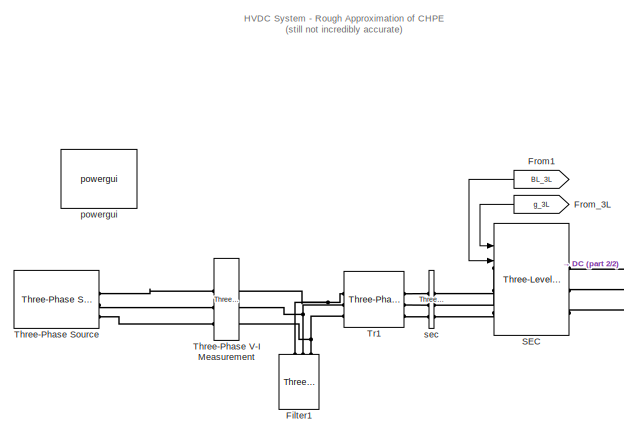
[diagram: root canvas - part 1/2, top left region]
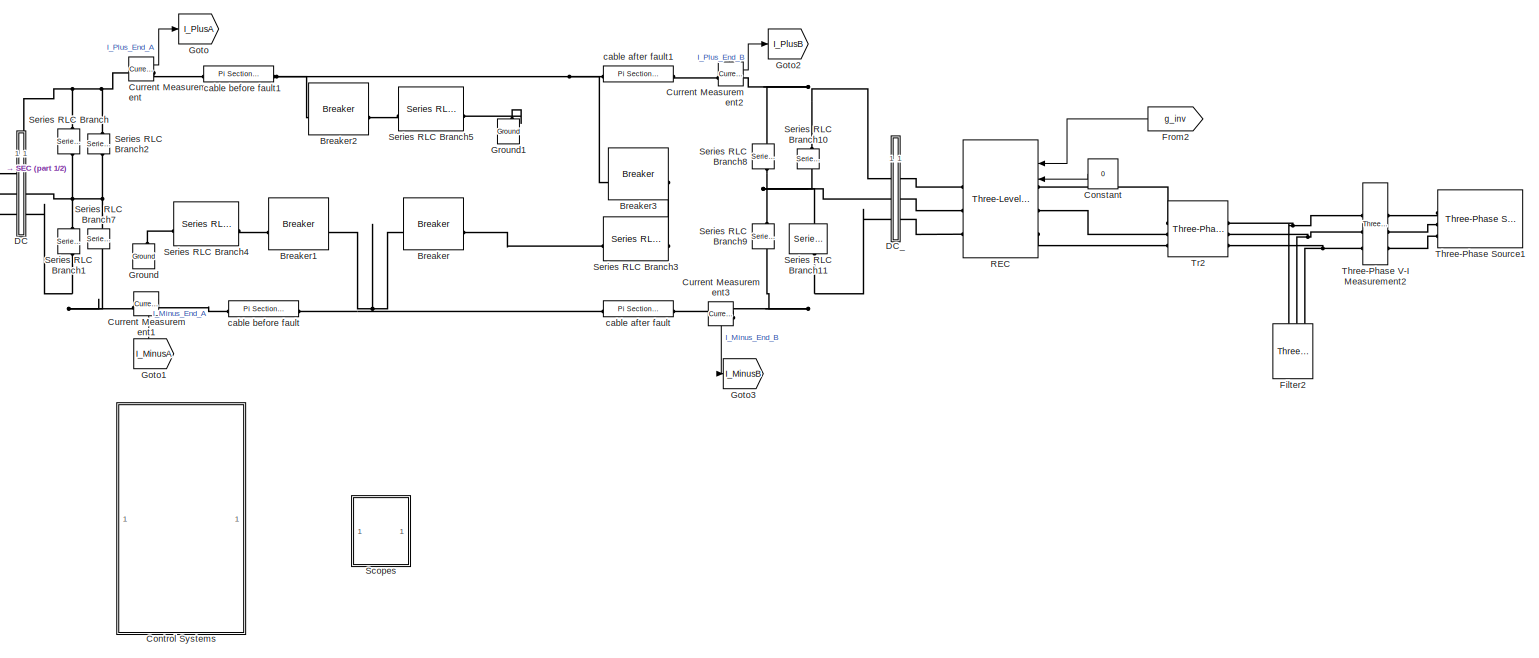
[diagram: root canvas - part 2/2, center side, full height]
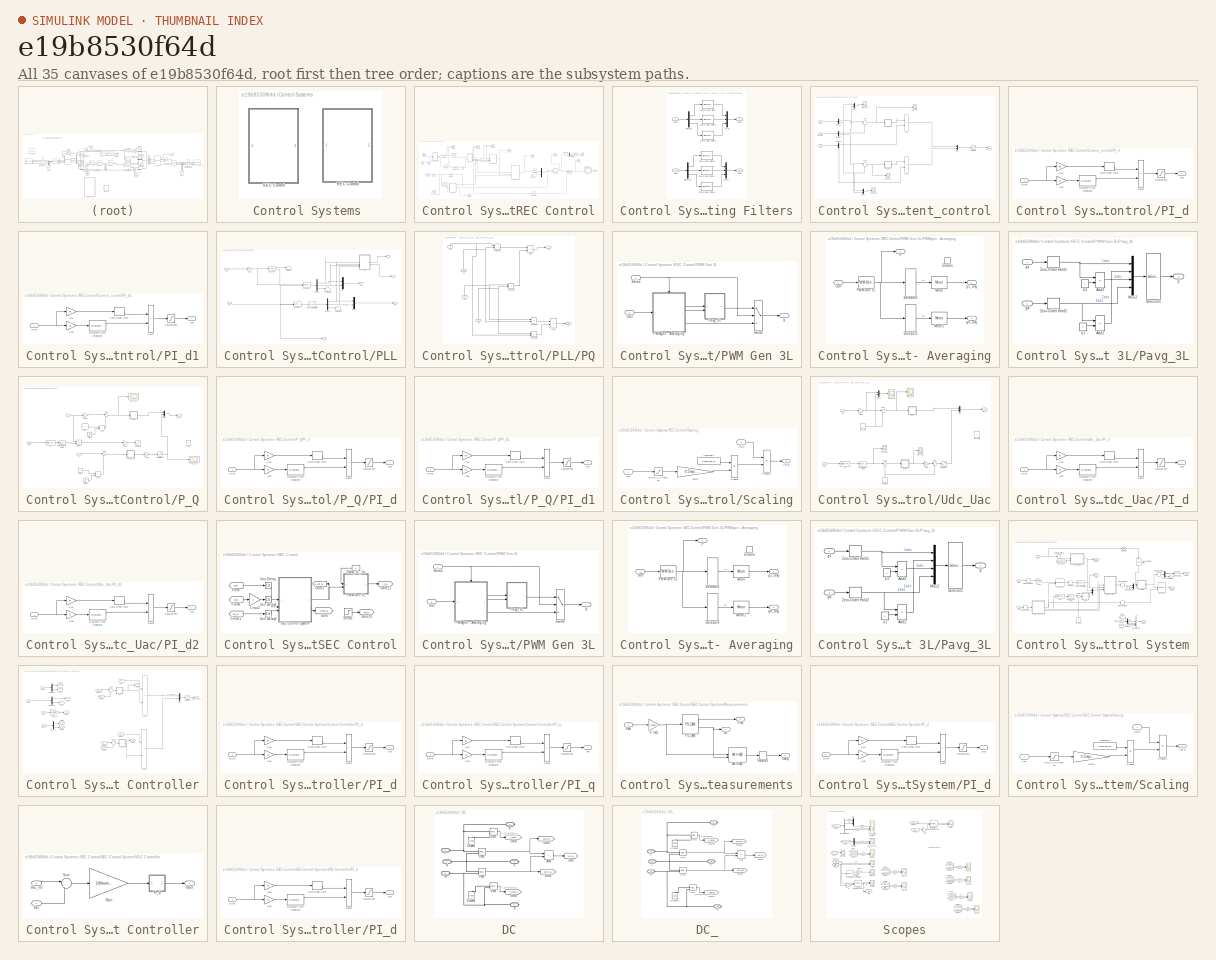
[diagram: thumbnail index - all 35 canvases of the model, root first then tree order]
MODEL slx_e19b8530f64d
KIND model
CONFIG AbsTol = auto
CONFIG EnableMultiTasking = on
CONFIG FixedStep = auto
CONFIG MaxStep = auto
CONFIG MinStep = auto
CONFIG PreLoadFcn = power_converters_init;
CONFIG RelTol = 1e-4
CONFIG SampleTimeConstraint = Unconstrained
CONFIG SolverName = FixedStepDiscrete
CONFIG StartTime = 0.0
CONFIG StopTime = 1.5
BLOCK [Reference] Breaker  REF=spsBreakerLib/Breaker
  LibrarySourceBlock = sps_lib/Power Grid Elements/Breaker
  SourceBlock = spsBreakerLib/Breaker
  SourceType = Breaker
BLOCK [Reference] Breaker1  REF=spsBreakerLib/Breaker
  LibrarySourceBlock = sps_lib/Power Grid Elements/Breaker
  SourceBlock = spsBreakerLib/Breaker
  SourceType = Breaker
BLOCK [Reference] Breaker2  REF=spsBreakerLib/Breaker
  LibrarySourceBlock = sps_lib/Power Grid Elements/Breaker
  SourceBlock = spsBreakerLib/Breaker
  SourceType = Breaker
BLOCK [Reference] Breaker3  REF=spsBreakerLib/Breaker
  LibrarySourceBlock = sps_lib/Power Grid Elements/Breaker
  SourceBlock = spsBreakerLib/Breaker
  SourceType = Breaker
BLOCK [Constant] Constant
  NameLocation = top
  Value = 0
BLOCK [SubSystem] Control Systems 
BLOCK [SubSystem] Control Systems /REC Control
BLOCK [SubSystem] Control Systems /REC Control/Anti Aliasing Filters
BLOCK [Outport] Control Systems /REC Control/Anti Aliasing Filters/ Vabc
BLOCK [Reference] Control Systems /REC Control/Anti Aliasing Filters/2nd-Order Filter  REF=powerlib_extras/Discrete 
Control Blocks/Discrete 
2nd-Order
Filter
  SourceBlock = powerlib_extras/Discrete \nControl Blocks/Discrete \n2nd-Order\nFilter
  SourceType = Discrete 2nd-Order Filter
BLOCK [Reference] Control Systems /REC Control/Anti Aliasing Filters/2nd-Order Filter1  REF=powerlib_extras/Discrete 
Control Blocks/Discrete 
2nd-Order
Filter
  SourceBlock = powerlib_extras/Discrete \nControl Blocks/Discrete \n2nd-Order\nFilter
  SourceType = Discrete 2nd-Order Filter
BLOCK [Reference] Control Systems /REC Control/Anti Aliasing Filters/2nd-Order Filter2  REF=powerlib_extras/Discrete 
Control Blocks/Discrete 
2nd-Order
Filter
  SourceBlock = powerlib_extras/Discrete \nControl Blocks/Discrete \n2nd-Order\nFilter
  SourceType = Discrete 2nd-Order Filter
BLOCK [Reference] Control Systems /REC Control/Anti Aliasing Filters/2nd-Order Filter3  REF=powerlib_extras/Discrete 
Control Blocks/Discrete 
2nd-Order
Filter
  SourceBlock = powerlib_extras/Discrete \nControl Blocks/Discrete \n2nd-Order\nFilter
  SourceType = Discrete 2nd-Order Filter
BLOCK [Reference] Control Systems /REC Control/Anti Aliasing Filters/2nd-Order Filter4  REF=powerlib_extras/Discrete 
Control Blocks/Discrete 
2nd-Order
Filter
  SourceBlock = powerlib_extras/Discrete \nControl Blocks/Discrete \n2nd-Order\nFilter
  SourceType = Discrete 2nd-Order Filter
BLOCK [Reference] Control Systems /REC Control/Anti Aliasing Filters/2nd-Order Filter5  REF=powerlib_extras/Discrete 
Control Blocks/Discrete 
2nd-Order
Filter
  SourceBlock = powerlib_extras/Discrete \nControl Blocks/Discrete \n2nd-Order\nFilter
  SourceType = Discrete 2nd-Order Filter
BLOCK [Demux] Control Systems /REC Control/Anti Aliasing Filters/Demux
  DisplayOption = none
  Outputs = 3
BLOCK [Demux] Control Systems /REC Control/Anti Aliasing Filters/Demux1
  DisplayOption = none
  Outputs = 3
BLOCK [Outport] Control Systems /REC Control/Anti Aliasing Filters/Iabc
  Port = 2
BLOCK [Inport] Control Systems /REC Control/Anti Aliasing Filters/Iabc 
  Port = 2
  PortDimensions = 3
BLOCK [Mux] Control Systems /REC Control/Anti Aliasing Filters/Mux
  DisplayOption = bar
  Inputs = 3
BLOCK [Mux] Control Systems /REC Control/Anti Aliasing Filters/Mux1
  DisplayOption = bar
  Inputs = 3
BLOCK [Inport] Control Systems /REC Control/Anti Aliasing Filters/Vabc
  PortDimensions = 3
BLOCK [Constant] Control Systems /REC Control/Constant
  SampleTime = Ts_PWM
  Value = 0
BLOCK [SubSystem] Control Systems /REC Control/Current_control
BLOCK [Sum] Control Systems /REC Control/Current_control/Add
  IconShape = rectangular
  Inputs = -+
BLOCK [Sum] Control Systems /REC Control/Current_control/Add1
  IconShape = rectangular
  Inputs = -+
BLOCK [Demux] Control Systems /REC Control/Current_control/Demux
  Outputs = 2
BLOCK [Demux] Control Systems /REC Control/Current_control/Demux1
  Outputs = 2
BLOCK [Demux] Control Systems /REC Control/Current_control/Demux2
  Outputs = 2
BLOCK [Mux] Control Systems /REC Control/Current_control/Mux
  DisplayOption = bar
  Inputs = 2
BLOCK [Mux] Control Systems /REC Control/Current_control/Mux1
  DisplayOption = bar
  Inputs = 2
BLOCK [Mux] Control Systems /REC Control/Current_control/Mux2
  DisplayOption = bar
  Inputs = 2
BLOCK [SubSystem] Control Systems /REC Control/Current_control/PI_d
  DialogController = POWERSYS.PowerSysDialog
BLOCK [DiscreteIntegrator] Control Systems /REC Control/Current_control/PI_d/Discrete-Time Integrator
  ICPrevOutput = DiscIntNeverNeededParam
  ICPrevScaledInput = DiscIntNeverNeededParam
  InitialCondition = Init
  LimitOutput = on
  LowerSaturationLimit = LowerLimit
  SampleTime = Ts
  UpperSaturationLimit = UpperLimit
BLOCK [Inport] Control Systems /REC Control/Current_control/PI_d/Error
  SampleTime = Ts
BLOCK [Gain] Control Systems /REC Control/Current_control/PI_d/Kp4
  Gain = Kp
  OutDataTypeStr = Inherit: Same as input
  ParamDataTypeStr = Inherit: Same as input
  SampleTime = Ts
  SaturateOnIntegerOverflow = on
BLOCK [Gain] Control Systems /REC Control/Current_control/PI_d/Kp5
  Gain = Ki
  OutDataTypeStr = Inherit: Same as input
  ParamDataTypeStr = Inherit: Same as input
  SampleTime = Ts
  SaturateOnIntegerOverflow = on
BLOCK [Outport] Control Systems /REC Control/Current_control/PI_d/Out
  InitialOutput = 0
  SampleTime = Ts
BLOCK [Saturate] Control Systems /REC Control/Current_control/PI_d/Saturation2
  LowerLimit = LowerLimit
  NameLocation = top
  SampleTime = Ts
  UpperLimit = UpperLimit
BLOCK [Sum] Control Systems /REC Control/Current_control/PI_d/Sum6
  IconShape = rectangular
  InputSameDT = on
  OutDataTypeStr = Inherit: Same as first input
  SampleTime = Ts
  SaturateOnIntegerOverflow = on
BLOCK [ZeroOrderHold] Control Systems /REC Control/Current_control/PI_d/Zero-Order Hold
  SampleTime = Ts
BLOCK [SubSystem] Control Systems /REC Control/Current_control/PI_d1
  DialogController = POWERSYS.PowerSysDialog
BLOCK [DiscreteIntegrator] Control Systems /REC Control/Current_control/PI_d1/Discrete-Time Integrator
  ICPrevOutput = DiscIntNeverNeededParam
  ICPrevScaledInput = DiscIntNeverNeededParam
  InitialCondition = Init
  LimitOutput = on
  LowerSaturationLimit = LowerLimit
  SampleTime = Ts
  UpperSaturationLimit = UpperLimit
BLOCK [Inport] Control Systems /REC Control/Current_control/PI_d1/Error
  SampleTime = Ts
BLOCK [Gain] Control Systems /REC Control/Current_control/PI_d1/Kp4
  Gain = Kp
  OutDataTypeStr = Inherit: Same as input
  ParamDataTypeStr = Inherit: Same as input
  SampleTime = Ts
  SaturateOnIntegerOverflow = on
BLOCK [Gain] Control Systems /REC Control/Current_control/PI_d1/Kp5
  Gain = Ki
  OutDataTypeStr = Inherit: Same as input
  ParamDataTypeStr = Inherit: Same as input
  SampleTime = Ts
  SaturateOnIntegerOverflow = on
BLOCK [Outport] Control Systems /REC Control/Current_control/PI_d1/Out
  InitialOutput = 0
  SampleTime = Ts
BLOCK [Saturate] Control Systems /REC Control/Current_control/PI_d1/Saturation2
  LowerLimit = LowerLimit
  NameLocation = top
  SampleTime = Ts
  UpperLimit = UpperLimit
BLOCK [Sum] Control Systems /REC Control/Current_control/PI_d1/Sum6
  IconShape = rectangular
  InputSameDT = on
  OutDataTypeStr = Inherit: Same as first input
  SampleTime = Ts
  SaturateOnIntegerOverflow = on
BLOCK [ZeroOrderHold] Control Systems /REC Control/Current_control/PI_d1/Zero-Order Hold
  SampleTime = Ts
BLOCK [Saturate] Control Systems /REC Control/Current_control/Saturation
  LowerLimit = LimitL_Ireg_3L
  UpperLimit = LimitU_Ireg_3L
BLOCK [Sum] Control Systems /REC Control/Current_control/Sum
  Inputs = |-+
BLOCK [Sum] Control Systems /REC Control/Current_control/Sum1
  Inputs = |+-
BLOCK [Inport] Control Systems /REC Control/Current_control/Udq
  Port = 3
BLOCK [Scope] Control Systems /REC Control/Current_control/Vdc_3L1
  Floating = off
  NumInputPorts = 1
  ScopeSpecificationString = Simulink.scopes.TimeScopeBlockCfg('CurrentConfiguration', extmgr.ConfigurationSet(extmgr.Configuration('Core','General UI',true),extmgr.Configuration('Core','Source UI',true),extmgr.Configuration('Sources','WiredSimulink',true,'DataLoggingVariableName','ScopeData11'),extmgr.Configuration('Visuals','Time Domain',true,'SerializedDisplays',{struct('MinYLimReal','-3.41296','MaxYLimReal','0.79411','YLa...<+1487ch>
BLOCK [Scope] Control Systems /REC Control/Current_control/Vdc_3L2
  Floating = off
  NumInputPorts = 1
  ScopeSpecificationString = Simulink.scopes.TimeScopeBlockCfg('CurrentConfiguration', extmgr.ConfigurationSet(extmgr.Configuration('Core','General UI',true),extmgr.Configuration('Core','Source UI',true),extmgr.Configuration('Sources','WiredSimulink',true,'DataLoggingVariableName','ScopeData12'),extmgr.Configuration('Visuals','Time Domain',true,'SerializedDisplays',{struct('MinYLimReal','-2.79082','MaxYLimReal','5.27537','YLa...<+1504ch>
BLOCK [Scope] Control Systems /REC Control/Current_control/Vdc_3L4
  Floating = off
  NumInputPorts = 1
  ScopeSpecificationString = Simulink.scopes.TimeScopeBlockCfg('CurrentConfiguration', extmgr.ConfigurationSet(extmgr.Configuration('Core','General UI',true),extmgr.Configuration('Core','Source UI',true),extmgr.Configuration('Sources','WiredSimulink',true,'DataLoggingVariableName','ScopeData14'),extmgr.Configuration('Visuals','Time Domain',true,'SerializedDisplays',{struct('MinYLimReal','-2.74752','MaxYLimReal','3.00282','YLa...<+1502ch>
BLOCK [Scope] Control Systems /REC Control/Current_control/Vdc_3L7
  Floating = off
  NumInputPorts = 1
  ScopeSpecificationString = Simulink.scopes.TimeScopeBlockCfg('CurrentConfiguration', extmgr.ConfigurationSet(extmgr.Configuration('Core','General UI',true),extmgr.Configuration('Core','Source UI',true),extmgr.Configuration('Sources','WiredSimulink',true,'DataLoggingVariableName','ScopeData10'),extmgr.Configuration('Visuals','Time Domain',true,'SerializedDisplays',{struct('MinYLimReal','-6.47588','MaxYLimReal','2.09535','YLa...<+1486ch>
BLOCK [Inport] Control Systems /REC Control/Current_control/idq
BLOCK [Inport] Control Systems /REC Control/Current_control/idq_ref
  Port = 2
BLOCK [Outport] Control Systems /REC Control/Current_control/udq_con
BLOCK [Demux] Control Systems /REC Control/Demux
  Outputs = 3
BLOCK [From] Control Systems /REC Control/From
  GotoTag = Uinv
  TagVisibility = global
BLOCK [From] Control Systems /REC Control/From2
  GotoTag = Iinv
  TagVisibility = global
BLOCK [From] Control Systems /REC Control/From3
  GotoTag = Vdc_inv
  TagVisibility = global
BLOCK [Gain] Control Systems /REC Control/Gain
  Gain = -1
BLOCK [Goto] Control Systems /REC Control/Goto11
  GotoTag = g_inv
  TagVisibility = global
BLOCK [Gain] Control Systems /REC Control/I-->pu
  Gain = 1/(Pnom_dc_3L*sqrt(2)/(Vnom_prim_3L*sqrt(3)))
BLOCK [Math] Control Systems /REC Control/Math Function
  NameLocation = top
  Operator = hypot
  SignedPower = on
BLOCK [Mux] Control Systems /REC Control/Mux
  DisplayOption = bar
  Inputs = 2
BLOCK [SubSystem] Control Systems /REC Control/PLL
BLOCK [Demux] Control Systems /REC Control/PLL/Demux
  Outputs = 3
BLOCK [Demux] Control Systems /REC Control/PLL/Demux1
  Outputs = 3
BLOCK [Inport] Control Systems /REC Control/PLL/Iac
  Port = 2
BLOCK [Mux] Control Systems /REC Control/PLL/Mux
  DisplayOption = bar
  Inputs = 2
BLOCK [Mux] Control Systems /REC Control/PLL/Mux1
  DisplayOption = bar
  Inputs = 2
BLOCK [Outport] Control Systems /REC Control/PLL/P
  Port = 3
BLOCK [Reference] Control Systems /REC Control/PLL/PLL (3ph)  REF=spsPLL3phLib/PLL
(3ph)
  LibrarySourceBlock = sps_lib/Control/PLL\n(3ph)
  SourceBlock = spsPLL3phLib/PLL\n(3ph)
  SourceType = PLL (3ph)
BLOCK [SubSystem] Control Systems /REC Control/PLL/PQ
BLOCK [Sum] Control Systems /REC Control/PLL/PQ/Add
  IconShape = rectangular
BLOCK [Sum] Control Systems /REC Control/PLL/PQ/Add1
  IconShape = rectangular
  Inputs = +-
BLOCK [Outport] Control Systems /REC Control/PLL/PQ/P
BLOCK [Product] Control Systems /REC Control/PLL/PQ/Product
BLOCK [Product] Control Systems /REC Control/PLL/PQ/Product1
BLOCK [Product] Control Systems /REC Control/PLL/PQ/Product2
BLOCK [Product] Control Systems /REC Control/PLL/PQ/Product3
BLOCK [Outport] Control Systems /REC Control/PLL/PQ/Q
  Port = 2
BLOCK [Inport] Control Systems /REC Control/PLL/PQ/id
  NameLocation = right
  Port = 2
BLOCK [Inport] Control Systems /REC Control/PLL/PQ/iq
  NameLocation = right
  Port = 4
BLOCK [Inport] Control Systems /REC Control/PLL/PQ/ud
  NameLocation = right
BLOCK [Inport] Control Systems /REC Control/PLL/PQ/uq
  NameLocation = right
  Port = 3
BLOCK [Outport] Control Systems /REC Control/PLL/Q
  Port = 4
BLOCK [Reference] Control Systems /REC Control/PLL/Second-Order Filter  REF=spsSecondOrderFilterLib/Second-Order
Filter
  LibrarySourceBlock = sps_lib/Control/Filters/Second-Order\nFilter
  SourceBlock = spsSecondOrderFilterLib/Second-Order\nFilter
  SourceType = Second-Order Filter
BLOCK [Terminator] Control Systems /REC Control/PLL/Terminator
BLOCK [Terminator] Control Systems /REC Control/PLL/Terminator1
BLOCK [Terminator] Control Systems /REC Control/PLL/Terminator2
BLOCK [Inport] Control Systems /REC Control/PLL/Uac
BLOCK [Outport] Control Systems /REC Control/PLL/Udq
BLOCK [Gain] Control Systems /REC Control/PLL/V-->pu
  Gain = 1/(Vnom_prim_3L*sqrt(2)/sqrt(3))
BLOCK [Reference] Control Systems /REC Control/PLL/abc to dq0  REF=spsabctodq0Lib/abc to dq0
  LibrarySourceBlock = sps_lib/Control/abc to dq0
  SourceBlock = spsabctodq0Lib/abc to dq0
  SourceType = abc to dq0 Transformation
BLOCK [Reference] Control Systems /REC Control/PLL/abc to dq1  REF=spsabctodq0Lib/abc to dq0
  LibrarySourceBlock = sps_lib/Control/abc to dq0
  SourceBlock = spsabctodq0Lib/abc to dq0
  SourceType = abc to dq0 Transformation
BLOCK [Outport] Control Systems /REC Control/PLL/idq
  Port = 2
BLOCK [Outport] Control Systems /REC Control/PLL/w
  Port = 5
BLOCK [SubSystem] Control Systems /REC Control/PWM Gen 3L
BLOCK [SubSystem] Control Systems /REC Control/PWM Gen 3L/PWMgen - Averaging
BLOCK [EnablePort] Control Systems /REC Control/PWM Gen 3L/PWMgen - Averaging/Enable
BLOCK [Reference] Control Systems /REC Control/PWM Gen 3L/PWMgen - Averaging/Mean  REF=spsMeanLib/Mean
  LibrarySourceBlock = sps_lib/Sensors and Measurements/Mean
  SourceBlock = spsMeanLib/Mean
  SourceType = Mean
BLOCK [Reference] Control Systems /REC Control/PWM Gen 3L/PWMgen - Averaging/Mean1  REF=spsMeanLib/Mean
  LibrarySourceBlock = sps_lib/Sensors and Measurements/Mean
  SourceBlock = spsMeanLib/Mean
  SourceType = Mean
BLOCK [Outport] Control Systems /REC Control/PWM Gen 3L/PWMgen - Averaging/P
  Port = 3
BLOCK [Reference] Control Systems /REC Control/PWM Gen 3L/PWMgen - Averaging/PWM Gen 3L  REF=spsPWMGenerator3LevelLib/PWM Generator
(3-Level)
  LibrarySourceBlock = sps_lib/Power Electronics/Power Electronics Control/PWM Generator\n(3-Level)
  SourceBlock = spsPWMGenerator3LevelLib/PWM Generator\n(3-Level)
  SourceType = PWM Generator (3-Level)
BLOCK [Selector] Control Systems /REC Control/PWM Gen 3L/PWMgen - Averaging/Selector2
  IndexOptions = Index vector (dialog)
  Indices = [1  5  9]
  InputPortWidth = 12
  OutputSizes = 1
BLOCK [Selector] Control Systems /REC Control/PWM Gen 3L/PWMgen - Averaging/Selector3
  IndexOptions = Index vector (dialog)
  Indices = [1  5  9]+3
  InputPortWidth = 12
  OutputSizes = 1
BLOCK [Inport] Control Systems /REC Control/PWM Gen 3L/PWMgen - Averaging/Uref
BLOCK [Outport] Control Systems /REC Control/PWM Gen 3L/PWMgen - Averaging/g1_avg
BLOCK [Outport] Control Systems /REC Control/PWM Gen 3L/PWMgen - Averaging/g4_avg
  Port = 2
BLOCK [SubSystem] Control Systems /REC Control/PWM Gen 3L/Pavg_3L
BLOCK [Sum] Control Systems /REC Control/PWM Gen 3L/Pavg_3L/Add1
  IconShape = rectangular
  Inputs = -+
BLOCK [Sum] Control Systems /REC Control/PWM Gen 3L/Pavg_3L/Add2
  IconShape = rectangular
  Inputs = -+
BLOCK [Mux] Control Systems /REC Control/PWM Gen 3L/Pavg_3L/Mux2
  DisplayOption = bar
  Inputs = [ 3 3 3 3 ]
BLOCK [Selector] Control Systems /REC Control/PWM Gen 3L/Pavg_3L/Selector1
  IndexOptions = Index vector (dialog)
  Indices = [1 4 7 10 2 5 8 11 3 6 9 12]
  InputPortWidth = 12
  OutputSizes = 1
BLOCK [ZeroOrderHold] Control Systems /REC Control/PWM Gen 3L/Pavg_3L/Zero-Order Hold1
  SampleTime = Ts_Power
BLOCK [ZeroOrderHold] Control Systems /REC Control/PWM Gen 3L/Pavg_3L/Zero-Order Hold2
  SampleTime = Ts_Power
BLOCK [Outport] Control Systems /REC Control/PWM Gen 3L/Pavg_3L/g
  SampleTime = Ts_Power
BLOCK [Inport] Control Systems /REC Control/PWM Gen 3L/Pavg_3L/g1
  SampleTime = Ts_PWM
BLOCK [Inport] Control Systems /REC Control/PWM Gen 3L/Pavg_3L/g4
  Port = 2
  SampleTime = Ts_PWM
BLOCK [Constant] Control Systems /REC Control/PWM Gen 3L/Pavg_3L/k1
BLOCK [Constant] Control Systems /REC Control/PWM Gen 3L/Pavg_3L/k3
BLOCK [Inport] Control Systems /REC Control/PWM Gen 3L/Select
BLOCK [Switch] Control Systems /REC Control/PWM Gen 3L/Switch
  InputSameDT = off
  SaturateOnIntegerOverflow = off
  Threshold = 1.5
BLOCK [Inport] Control Systems /REC Control/PWM Gen 3L/Uref
  Port = 2
BLOCK [Outport] Control Systems /REC Control/PWM Gen 3L/g
BLOCK [Constant] Control Systems /REC Control/PWM_3L_On
  AttributesFormatString = %<Tag>
  NameLocation = top
BLOCK [SubSystem] Control Systems /REC Control/P_Q
BLOCK [Sum] Control Systems /REC Control/P_Q/Add
  IconShape = rectangular
BLOCK [Sum] Control Systems /REC Control/P_Q/Add1
  IconShape = rectangular
BLOCK [Reference] Control Systems /REC Control/P_Q/Discrete Mean value  REF=powerlib_extras/Discrete
Measurements/Discrete 
Mean value
  SourceBlock = powerlib_extras/Discrete\nMeasurements/Discrete \nMean value
  SourceType = Discrete Mean value
BLOCK [Product] Control Systems /REC Control/P_Q/Divide
  Inputs = */
BLOCK [Fcn] Control Systems /REC Control/P_Q/Fcn
  Expr = sqrt(u[1]^2+u[2]^2)
  SampleTime = Ts_Control
BLOCK [Gain] Control Systems /REC Control/P_Q/Gain
BLOCK [Gain] Control Systems /REC Control/P_Q/Gain1
BLOCK [Gain] Control Systems /REC Control/P_Q/Gain2
  Gain = -1
BLOCK [Mux] Control Systems /REC Control/P_Q/Mux
  DisplayOption = bar
  Inputs = 2
BLOCK [Inport] Control Systems /REC Control/P_Q/P
BLOCK [SubSystem] Control Systems /REC Control/P_Q/PI_d
  DialogController = POWERSYS.PowerSysDialog
BLOCK [DiscreteIntegrator] Control Systems /REC Control/P_Q/PI_d/Discrete-Time Integrator
  ICPrevOutput = DiscIntNeverNeededParam
  ICPrevScaledInput = DiscIntNeverNeededParam
  InitialCondition = Init
  LimitOutput = on
  LowerSaturationLimit = LowerLimit
  SampleTime = Ts
  UpperSaturationLimit = UpperLimit
BLOCK [Inport] Control Systems /REC Control/P_Q/PI_d/Error
  SampleTime = Ts
BLOCK [Gain] Control Systems /REC Control/P_Q/PI_d/Kp4
  Gain = Kp
  OutDataTypeStr = Inherit: Same as input
  ParamDataTypeStr = Inherit: Same as input
  SampleTime = Ts
  SaturateOnIntegerOverflow = on
BLOCK [Gain] Control Systems /REC Control/P_Q/PI_d/Kp5
  Gain = Ki
  OutDataTypeStr = Inherit: Same as input
  ParamDataTypeStr = Inherit: Same as input
  SampleTime = Ts
  SaturateOnIntegerOverflow = on
BLOCK [Outport] Control Systems /REC Control/P_Q/PI_d/Out
  InitialOutput = 0
  SampleTime = Ts
BLOCK [Saturate] Control Systems /REC Control/P_Q/PI_d/Saturation2
  LowerLimit = LowerLimit
  NameLocation = top
  SampleTime = Ts
  UpperLimit = UpperLimit
BLOCK [Sum] Control Systems /REC Control/P_Q/PI_d/Sum6
  IconShape = rectangular
  InputSameDT = on
  OutDataTypeStr = Inherit: Same as first input
  SampleTime = Ts
  SaturateOnIntegerOverflow = on
BLOCK [ZeroOrderHold] Control Systems /REC Control/P_Q/PI_d/Zero-Order Hold
  SampleTime = Ts
BLOCK [SubSystem] Control Systems /REC Control/P_Q/PI_d1
  DialogController = POWERSYS.PowerSysDialog
BLOCK [DiscreteIntegrator] Control Systems /REC Control/P_Q/PI_d1/Discrete-Time Integrator
  ICPrevOutput = DiscIntNeverNeededParam
  ICPrevScaledInput = DiscIntNeverNeededParam
  InitialCondition = Init
  LimitOutput = on
  LowerSaturationLimit = LowerLimit
  SampleTime = Ts
  UpperSaturationLimit = UpperLimit
BLOCK [Inport] Control Systems /REC Control/P_Q/PI_d1/Error
  SampleTime = Ts
BLOCK [Gain] Control Systems /REC Control/P_Q/PI_d1/Kp4
  Gain = Kp
  OutDataTypeStr = Inherit: Same as input
  ParamDataTypeStr = Inherit: Same as input
  SampleTime = Ts
  SaturateOnIntegerOverflow = on
BLOCK [Gain] Control Systems /REC Control/P_Q/PI_d1/Kp5
  Gain = Ki
  OutDataTypeStr = Inherit: Same as input
  ParamDataTypeStr = Inherit: Same as input
  SampleTime = Ts
  SaturateOnIntegerOverflow = on
BLOCK [Outport] Control Systems /REC Control/P_Q/PI_d1/Out
  InitialOutput = 0
  SampleTime = Ts
BLOCK [Saturate] Control Systems /REC Control/P_Q/PI_d1/Saturation2
  LowerLimit = LowerLimit
  NameLocation = top
  SampleTime = Ts
  UpperLimit = UpperLimit
BLOCK [Sum] Control Systems /REC Control/P_Q/PI_d1/Sum6
  IconShape = rectangular
  InputSameDT = on
  OutDataTypeStr = Inherit: Same as first input
  SampleTime = Ts
  SaturateOnIntegerOverflow = on
BLOCK [ZeroOrderHold] Control Systems /REC Control/P_Q/PI_d1/Zero-Order Hold
  SampleTime = Ts
BLOCK [Constant] Control Systems /REC Control/P_Q/Pref
BLOCK [Constant] Control Systems /REC Control/P_Q/Pref1
  Value = 0
BLOCK [Inport] Control Systems /REC Control/P_Q/Q
  Port = 2
BLOCK [Constant] Control Systems /REC Control/P_Q/Qref
  Value = 0
BLOCK [Saturate] Control Systems /REC Control/P_Q/Saturation1
  LowerLimit = -1
  UpperLimit = 1
BLOCK [Saturate] Control Systems /REC Control/P_Q/Saturation2
  LowerLimit = -1
  UpperLimit = 1
BLOCK [Step] Control Systems /REC Control/P_Q/Step
  After = -0.2
  SampleTime = Ts_Control
BLOCK [Step] Control Systems /REC Control/P_Q/Step1
  After = 0.2
  SampleTime = Ts_Control
  Time = 1.2
BLOCK [Sum] Control Systems /REC Control/P_Q/Sum
  Inputs = |+-
BLOCK [Sum] Control Systems /REC Control/P_Q/Sum1
  Inputs = |+-
BLOCK [Scope] Control Systems /REC Control/P_Q/Vdc_3L1
  Floating = off
  NumInputPorts = 1
  ScopeSpecificationString = Simulink.scopes.TimeScopeBlockCfg('CurrentConfiguration', extmgr.ConfigurationSet(extmgr.Configuration('Core','General UI',true),extmgr.Configuration('Core','Source UI',true),extmgr.Configuration('Sources','WiredSimulink',true,'DataLoggingVariableName','ScopeData1'),extmgr.Configuration('Visuals','Time Domain',true,'SerializedDisplays',{struct('MinYLimReal','-6.58786','MaxYLimReal','1.8208','YLabe...<+1489ch>
BLOCK [Scope] Control Systems /REC Control/P_Q/Vdc_3L4
  Floating = off
  NumInputPorts = 1
  ScopeSpecificationString = Simulink.scopes.TimeScopeBlockCfg('CurrentConfiguration', extmgr.ConfigurationSet(extmgr.Configuration('Core','General UI',true),extmgr.Configuration('Core','Source UI',true),extmgr.Configuration('Sources','WiredSimulink',true,'DataLoggingVariableName','ScopeData13'),extmgr.Configuration('Visuals','Time Domain',true,'SerializedDisplays',{struct('MinYLimReal','-6.58786','MaxYLimReal','1.8208','YLab...<+1482ch>
BLOCK [Outport] Control Systems /REC Control/P_Q/idq_ref
BLOCK [Inport] Control Systems /REC Control/P_Q/udq
  Port = 3
BLOCK [RateTransition] Control Systems /REC Control/Rate Transition
  OutPortSampleTime = Ts_Control
BLOCK [RateTransition] Control Systems /REC Control/Rate Transition1
  OutPortSampleTime = Ts_Control
BLOCK [RateTransition] Control Systems /REC Control/Rate Transition2
  OutPortSampleTime = Ts_Control
BLOCK [RateTransition] Control Systems /REC Control/Rate Transition4
  OutPortSampleTime = Ts_PWM
BLOCK [RateTransition] Control Systems /REC Control/Rate Transition5
  OutPortSampleTime = Ts_Control
BLOCK [RateTransition] Control Systems /REC Control/Rate Transition7
  OutPortSampleTime = Ts_PWM
BLOCK [SubSystem] Control Systems /REC Control/Scaling
BLOCK [Saturate] Control Systems /REC Control/Scaling/0.8 to 1.2 x Vnom_dc
  LowerLimit = 0.5*Vnom_dc_3L
  UpperLimit = 1.5*Vnom_dc_3L
BLOCK [Constant] Control Systems /REC Control/Scaling/Constant1
  Value = Vnom_sec_3L
BLOCK [Gain] Control Systems /REC Control/Scaling/Gain1
  Gain = 0.5/sqrt(2)*sqrt(3)
BLOCK [Product] Control Systems /REC Control/Scaling/Product
  Inputs = */
BLOCK [Product] Control Systems /REC Control/Scaling/Product1
  Inputs = **
BLOCK [Inport] Control Systems /REC Control/Scaling/VdVq
  Port = 2
BLOCK [Outport] Control Systems /REC Control/Scaling/VdVq*
BLOCK [Inport] Control Systems /REC Control/Scaling/Vdc
BLOCK [Terminator] Control Systems /REC Control/Terminator
BLOCK [Gain] Control Systems /REC Control/Udc-->pu1
  Gain = 1/Vnom_dc_3L
BLOCK [SubSystem] Control Systems /REC Control/Udc_Uac
BLOCK [Reference] Control Systems /REC Control/Udc_Uac/Discrete Mean value  REF=powerlib_extras/Discrete
Measurements/Discrete 
Mean value
  SourceBlock = powerlib_extras/Discrete\nMeasurements/Discrete \nMean value
  SourceType = Discrete Mean value
BLOCK [Fcn] Control Systems /REC Control/Udc_Uac/Fcn
  Expr = sqrt(u[1]^2+u[2]^2)
  SampleTime = Ts_Control
BLOCK [Gain] Control Systems /REC Control/Udc_Uac/Gain
BLOCK [Gain] Control Systems /REC Control/Udc_Uac/Gain2
BLOCK [Mux] Control Systems /REC Control/Udc_Uac/Mux
  DisplayOption = bar
  Inputs = 2
BLOCK [Mux] Control Systems /REC Control/Udc_Uac/Mux1
  DisplayOption = bar
  Inputs = 2
BLOCK [SubSystem] Control Systems /REC Control/Udc_Uac/PI_d
  DialogController = POWERSYS.PowerSysDialog
BLOCK [DiscreteIntegrator] Control Systems /REC Control/Udc_Uac/PI_d/Discrete-Time Integrator
  ICPrevOutput = DiscIntNeverNeededParam
  ICPrevScaledInput = DiscIntNeverNeededParam
  InitialCondition = Init
  LimitOutput = on
  LowerSaturationLimit = LowerLimit
  SampleTime = Ts
  UpperSaturationLimit = UpperLimit
BLOCK [Inport] Control Systems /REC Control/Udc_Uac/PI_d/Error
  SampleTime = Ts
BLOCK [Gain] Control Systems /REC Control/Udc_Uac/PI_d/Kp4
  Gain = Kp
  OutDataTypeStr = Inherit: Same as input
  ParamDataTypeStr = Inherit: Same as input
  SampleTime = Ts
  SaturateOnIntegerOverflow = on
BLOCK [Gain] Control Systems /REC Control/Udc_Uac/PI_d/Kp5
  Gain = Ki
  OutDataTypeStr = Inherit: Same as input
  ParamDataTypeStr = Inherit: Same as input
  SampleTime = Ts
  SaturateOnIntegerOverflow = on
BLOCK [Outport] Control Systems /REC Control/Udc_Uac/PI_d/Out
  InitialOutput = 0
  SampleTime = Ts
BLOCK [Saturate] Control Systems /REC Control/Udc_Uac/PI_d/Saturation2
  LowerLimit = LowerLimit
  NameLocation = top
  SampleTime = Ts
  UpperLimit = UpperLimit
BLOCK [Sum] Control Systems /REC Control/Udc_Uac/PI_d/Sum6
  IconShape = rectangular
  InputSameDT = on
  OutDataTypeStr = Inherit: Same as first input
  SampleTime = Ts
  SaturateOnIntegerOverflow = on
BLOCK [ZeroOrderHold] Control Systems /REC Control/Udc_Uac/PI_d/Zero-Order Hold
  SampleTime = Ts
BLOCK [SubSystem] Control Systems /REC Control/Udc_Uac/PI_d2
  DialogController = POWERSYS.PowerSysDialog
BLOCK [DiscreteIntegrator] Control Systems /REC Control/Udc_Uac/PI_d2/Discrete-Time Integrator
  ICPrevOutput = DiscIntNeverNeededParam
  ICPrevScaledInput = DiscIntNeverNeededParam
  InitialCondition = Init
  LimitOutput = on
  LowerSaturationLimit = LowerLimit
  SampleTime = Ts
  UpperSaturationLimit = UpperLimit
BLOCK [Inport] Control Systems /REC Control/Udc_Uac/PI_d2/Error
  SampleTime = Ts
BLOCK [Gain] Control Systems /REC Control/Udc_Uac/PI_d2/Kp4
  Gain = Kp
  OutDataTypeStr = Inherit: Same as input
  ParamDataTypeStr = Inherit: Same as input
  SampleTime = Ts
  SaturateOnIntegerOverflow = on
BLOCK [Gain] Control Systems /REC Control/Udc_Uac/PI_d2/Kp5
  Gain = Ki
  OutDataTypeStr = Inherit: Same as input
  ParamDataTypeStr = Inherit: Same as input
  SampleTime = Ts
  SaturateOnIntegerOverflow = on
BLOCK [Outport] Control Systems /REC Control/Udc_Uac/PI_d2/Out
  InitialOutput = 0
  SampleTime = Ts
BLOCK [Saturate] Control Systems /REC Control/Udc_Uac/PI_d2/Saturation2
  LowerLimit = LowerLimit
  NameLocation = top
  SampleTime = Ts
  UpperLimit = UpperLimit
BLOCK [Sum] Control Systems /REC Control/Udc_Uac/PI_d2/Sum6
  IconShape = rectangular
  InputSameDT = on
  OutDataTypeStr = Inherit: Same as first input
  SampleTime = Ts
  SaturateOnIntegerOverflow = on
BLOCK [ZeroOrderHold] Control Systems /REC Control/Udc_Uac/PI_d2/Zero-Order Hold
  SampleTime = Ts
BLOCK [Saturate] Control Systems /REC Control/Udc_Uac/Saturation1
  LowerLimit = -1.15
  UpperLimit = 1.15
BLOCK [Sum] Control Systems /REC Control/Udc_Uac/Sum
  Inputs = |+-
BLOCK [Sum] Control Systems /REC Control/Udc_Uac/Sum1
  Inputs = |++
BLOCK [Sum] Control Systems /REC Control/Udc_Uac/Sum4
  Inputs = |-+
BLOCK [Inport] Control Systems /REC Control/Udc_Uac/Udc
BLOCK [Constant] Control Systems /REC Control/Udc_Uac/Udc_ref
BLOCK [Constant] Control Systems /REC Control/Udc_Uac/Udc_ref1
  Value = 0
BLOCK [Scope] Control Systems /REC Control/Udc_Uac/Vdc_3L1
  Floating = off
  NumInputPorts = 1
  ScopeSpecificationString = Simulink.scopes.TimeScopeBlockCfg('CurrentConfiguration', extmgr.ConfigurationSet(extmgr.Configuration('Core','General UI',true),extmgr.Configuration('Core','Source UI',true),extmgr.Configuration('Sources','WiredSimulink',true,'DataLoggingVariableName','ScopeData16'),extmgr.Configuration('Visuals','Time Domain',true,'SerializedDisplays',{struct('MinYLimReal','0.70121','MaxYLimReal','1.13974','YLab...<+1494ch>
BLOCK [Scope] Control Systems /REC Control/Udc_Uac/Vdc_3L2
  Floating = off
  NumInputPorts = 1
  ScopeSpecificationString = Simulink.scopes.TimeScopeBlockCfg('CurrentConfiguration', extmgr.ConfigurationSet(extmgr.Configuration('Core','General UI',true),extmgr.Configuration('Core','Source UI',true),extmgr.Configuration('Sources','WiredSimulink',true,'DataLoggingVariableName','ScopeData18'),extmgr.Configuration('Visuals','Time Domain',true,'SerializedDisplays',{struct('MinYLimReal','-0.11278','MaxYLimReal','0.01498','YLa...<+1487ch>
BLOCK [Scope] Control Systems /REC Control/Udc_Uac/Vdc_3L4
  Floating = off
  NumInputPorts = 1
  ScopeSpecificationString = Simulink.scopes.TimeScopeBlockCfg('CurrentConfiguration', extmgr.ConfigurationSet(extmgr.Configuration('Core','General UI',true),extmgr.Configuration('Core','Source UI',true),extmgr.Configuration('Sources','WiredSimulink',true,'DataLoggingVariableName','ScopeData13'),extmgr.Configuration('Visuals','Time Domain',true,'SerializedDisplays',{struct('MinYLimReal','-1.14073','MaxYLimReal','0.26661','YLa...<+1484ch>
BLOCK [Scope] Control Systems /REC Control/Udc_Uac/Vdc_3L9
  Floating = off
  NumInputPorts = 1
  ScopeSpecificationString = Simulink.scopes.TimeScopeBlockCfg('CurrentConfiguration', extmgr.ConfigurationSet(extmgr.Configuration('Core','General UI',true),extmgr.Configuration('Core','Source UI',true),extmgr.Configuration('Sources','WiredSimulink',true,'DataLoggingVariableName','ScopeData17'),extmgr.Configuration('Visuals','Time Domain',true,'SerializedDisplays',{struct('MinYLimReal','0.99063','MaxYLimReal','1.03783','YLab...<+1500ch>
BLOCK [Constant] Control Systems /REC Control/Udc_Uac/constant
  NameLocation = left
  SampleTime = Ts_Control
BLOCK [Outport] Control Systems /REC Control/Udc_Uac/idq_ref
BLOCK [Inport] Control Systems /REC Control/Udc_Uac/udq
  Port = 2
BLOCK [UnitDelay] Control Systems /REC Control/Unit Delay
  HasFrameUpgradeWarning = on
  SampleTime = Ts_Power
BLOCK [UnitDelay] Control Systems /REC Control/Unit Delay1
  HasFrameUpgradeWarning = on
  SampleTime = Ts_Power
BLOCK [UnitDelay] Control Systems /REC Control/Unit Delay2
  HasFrameUpgradeWarning = on
  SampleTime = Ts_PWM
BLOCK [Scope] Control Systems /REC Control/Vdc_3L
  Floating = off
  NumInputPorts = 1
  ScopeSpecificationString = Simulink.scopes.TimeScopeBlockCfg('CurrentConfiguration', extmgr.ConfigurationSet(extmgr.Configuration('Core','General UI',true),extmgr.Configuration('Core','Source UI',true),extmgr.Configuration('Sources','WiredSimulink',true,'DataLoggingVariableName','ScopeData1'),extmgr.Configuration('Visuals','Time Domain',true,'SerializedDisplays',{struct('MinYLimReal','-2.76646','MaxYLimReal','2.59697','YLab...<+1426ch>
BLOCK [Scope] Control Systems /REC Control/Vdc_3L1
  Floating = off
  NumInputPorts = 1
  ScopeSpecificationString = Simulink.scopes.TimeScopeBlockCfg('CurrentConfiguration', extmgr.ConfigurationSet(extmgr.Configuration('Core','General UI',true),extmgr.Configuration('Core','Source UI',true),extmgr.Configuration('Sources','WiredSimulink',true,'DataLoggingVariableName','ScopeData2'),extmgr.Configuration('Visuals','Time Domain',true,'SerializedDisplays',{struct('MinYLimReal','-0.28345','MaxYLimReal','2.55103','YLab...<+1416ch>
BLOCK [Scope] Control Systems /REC Control/Vdc_3L2
  Floating = off
  NumInputPorts = 2
  ScopeSpecificationString = Simulink.scopes.TimeScopeBlockCfg('CurrentConfiguration', extmgr.ConfigurationSet(extmgr.Configuration('Core','General UI',true),extmgr.Configuration('Core','Source UI',true),extmgr.Configuration('Sources','WiredSimulink',true,'DataLoggingVariableName','ScopeData3'),extmgr.Configuration('Visuals','Time Domain',true,'SerializedDisplays',{struct('MinYLimReal','-2.84237','MaxYLimReal','5.74612','YLab...<+2032ch>
BLOCK [Scope] Control Systems /REC Control/Vdc_3L3
  Floating = off
  NumInputPorts = 2
  ScopeSpecificationString = Simulink.scopes.TimeScopeBlockCfg('CurrentConfiguration', extmgr.ConfigurationSet(extmgr.Configuration('Core','General UI',true),extmgr.Configuration('Core','Source UI',true),extmgr.Configuration('Sources','WiredSimulink',true,'DataLoggingVariableName','ScopeData4'),extmgr.Configuration('Visuals','Time Domain',true,'SerializedDisplays',{struct('MinYLimReal','-0.3803','MaxYLimReal','1.2522','YLabel...<+2073ch>
BLOCK [Scope] Control Systems /REC Control/Vdc_3L4
  Floating = off
  NumInputPorts = 1
  ScopeSpecificationString = Simulink.scopes.TimeScopeBlockCfg('CurrentConfiguration', extmgr.ConfigurationSet(extmgr.Configuration('Core','General UI',true),extmgr.Configuration('Core','Source UI',true),extmgr.Configuration('Sources','WiredSimulink',true,'DataLoggingVariableName','ScopeData5'),extmgr.Configuration('Visuals','Time Domain',true,'SerializedDisplays',{struct('MinYLimReal','-1.36813','MaxYLimReal','0.81321','YLab...<+1495ch>
BLOCK [Scope] Control Systems /REC Control/Vdc_3L5
  Floating = off
  NumInputPorts = 2
  ScopeSpecificationString = Simulink.scopes.TimeScopeBlockCfg('CurrentConfiguration', extmgr.ConfigurationSet(extmgr.Configuration('Core','General UI',true),extmgr.Configuration('Core','Source UI',true),extmgr.Configuration('Sources','WiredSimulink',true,'DataLoggingVariableName','ScopeData6'),extmgr.Configuration('Visuals','Time Domain',true,'SerializedDisplays',{struct('MinYLimReal','-54338.80779','MaxYLimReal','56267.0291...<+2501ch>
BLOCK [Scope] Control Systems /REC Control/Vdc_3L6
  Floating = off
  NumInputPorts = 1
  ScopeSpecificationString = Simulink.scopes.TimeScopeBlockCfg('CurrentConfiguration', extmgr.ConfigurationSet(extmgr.Configuration('Core','General UI',true),extmgr.Configuration('Core','Source UI',true),extmgr.Configuration('Sources','WiredSimulink',true,'DataLoggingVariableName','ScopeData7'),extmgr.Configuration('Visuals','Time Domain',true,'SerializedDisplays',{struct('MinYLimReal','-1.43524','MaxYLimReal','2.40031','YLab...<+1486ch>
BLOCK [Scope] Control Systems /REC Control/Vdc_3L7
  Floating = off
  NumInputPorts = 1
  ScopeSpecificationString = Simulink.scopes.TimeScopeBlockCfg('CurrentConfiguration', extmgr.ConfigurationSet(extmgr.Configuration('Core','General UI',true),extmgr.Configuration('Core','Source UI',true),extmgr.Configuration('Sources','WiredSimulink',true,'DataLoggingVariableName','ScopeData8'),extmgr.Configuration('Visuals','Time Domain',true,'SerializedDisplays',{struct('MinYLimReal','-0.89702','MaxYLimReal','1.50019','YLab...<+1518ch>
BLOCK [Scope] Control Systems /REC Control/Vdc_3L8
  Floating = off
  NumInputPorts = 1
  ScopeSpecificationString = Simulink.scopes.TimeScopeBlockCfg('CurrentConfiguration', extmgr.ConfigurationSet(extmgr.Configuration('Core','General UI',true),extmgr.Configuration('Core','Source UI',true),extmgr.Configuration('Sources','WiredSimulink',true,'DataLoggingVariableName','ScopeData9'),extmgr.Configuration('Visuals','Time Domain',true,'SerializedDisplays',{struct('MinYLimReal','-1.41903','MaxYLimReal','1.27123','YLab...<+1502ch>
BLOCK [Scope] Control Systems /REC Control/Vdc_3L9
  Floating = off
  NumInputPorts = 1
  ScopeSpecificationString = Simulink.scopes.TimeScopeBlockCfg('CurrentConfiguration', extmgr.ConfigurationSet(extmgr.Configuration('Core','General UI',true),extmgr.Configuration('Core','Source UI',true),extmgr.Configuration('Sources','WiredSimulink',true,'DataLoggingVariableName','ScopeData15'),extmgr.Configuration('Visuals','Time Domain',true,'SerializedDisplays',{struct('MinYLimReal','-0.14074','MaxYLimReal','1.26665','YLa...<+1491ch>
BLOCK [Reference] Control Systems /REC Control/dq0 to abc  REF=spsdq0toabcLib/dq0 to abc
  LibrarySourceBlock = sps_lib/Control/dq0 to abc
  SourceBlock = spsdq0toabcLib/dq0 to abc
  SourceType = dq0 to abc Transformation
BLOCK [SubSystem] Control Systems /SEC Control
BLOCK [Step] Control Systems /SEC Control/Block1
  SampleTime = Ts_Power
  Time = 999
BLOCK [From] Control Systems /SEC Control/From
  GotoTag = Vgrid
  TagVisibility = global
BLOCK [From] Control Systems /SEC Control/From11
  GotoTag = Vdc_3L
  TagVisibility = global
BLOCK [From] Control Systems /SEC Control/From6
  GotoTag = Igrid
  TagVisibility = global
BLOCK [Goto] Control Systems /SEC Control/Goto
  GotoTag = meas_3L
  TagVisibility = global
BLOCK [Goto] Control Systems /SEC Control/Goto10
  GotoTag = BL_3L
  TagVisibility = global
BLOCK [Goto] Control Systems /SEC Control/Goto11
  GotoTag = g_3L
  TagVisibility = global
BLOCK [Goto] Control Systems /SEC Control/Goto2
  GotoTag = Uref_3L
  TagVisibility = global
BLOCK [Gain] Control Systems /SEC Control/I->pu2
  OutDataTypeStr = Inherit: Same as input
  ParamDataTypeStr = Inherit: Same as input
  SaturateOnIntegerOverflow = on
BLOCK [SubSystem] Control Systems /SEC Control/PWM Gen 3L
BLOCK [SubSystem] Control Systems /SEC Control/PWM Gen 3L/PWMgen - Averaging
BLOCK [EnablePort] Control Systems /SEC Control/PWM Gen 3L/PWMgen - Averaging/Enable
BLOCK [Reference] Control Systems /SEC Control/PWM Gen 3L/PWMgen - Averaging/Mean  REF=spsMeanLib/Mean
  LibrarySourceBlock = sps_lib/Sensors and Measurements/Mean
  SourceBlock = spsMeanLib/Mean
  SourceType = Mean
BLOCK [Reference] Control Systems /SEC Control/PWM Gen 3L/PWMgen - Averaging/Mean1  REF=spsMeanLib/Mean
  LibrarySourceBlock = sps_lib/Sensors and Measurements/Mean
  SourceBlock = spsMeanLib/Mean
  SourceType = Mean
BLOCK [Outport] Control Systems /SEC Control/PWM Gen 3L/PWMgen - Averaging/P
  Port = 3
BLOCK [Reference] Control Systems /SEC Control/PWM Gen 3L/PWMgen - Averaging/PWM Gen 3L  REF=spsPWMGenerator3LevelLib/PWM Generator
(3-Level)
  LibrarySourceBlock = sps_lib/Power Electronics/Power Electronics Control/PWM Generator\n(3-Level)
  SourceBlock = spsPWMGenerator3LevelLib/PWM Generator\n(3-Level)
  SourceType = PWM Generator (3-Level)
BLOCK [Selector] Control Systems /SEC Control/PWM Gen 3L/PWMgen - Averaging/Selector2
  IndexOptions = Index vector (dialog)
  Indices = [1  5  9]
  InputPortWidth = 12
  OutputSizes = 1
BLOCK [Selector] Control Systems /SEC Control/PWM Gen 3L/PWMgen - Averaging/Selector3
  IndexOptions = Index vector (dialog)
  Indices = [1  5  9]+3
  InputPortWidth = 12
  OutputSizes = 1
BLOCK [Inport] Control Systems /SEC Control/PWM Gen 3L/PWMgen - Averaging/Uref
BLOCK [Outport] Control Systems /SEC Control/PWM Gen 3L/PWMgen - Averaging/g1_avg
BLOCK [Outport] Control Systems /SEC Control/PWM Gen 3L/PWMgen - Averaging/g4_avg
  Port = 2
BLOCK [SubSystem] Control Systems /SEC Control/PWM Gen 3L/Pavg_3L
BLOCK [Sum] Control Systems /SEC Control/PWM Gen 3L/Pavg_3L/Add1
  IconShape = rectangular
  Inputs = -+
BLOCK [Sum] Control Systems /SEC Control/PWM Gen 3L/Pavg_3L/Add2
  IconShape = rectangular
  Inputs = -+
BLOCK [Mux] Control Systems /SEC Control/PWM Gen 3L/Pavg_3L/Mux2
  DisplayOption = bar
  Inputs = [ 3 3 3 3 ]
BLOCK [Selector] Control Systems /SEC Control/PWM Gen 3L/Pavg_3L/Selector1
  IndexOptions = Index vector (dialog)
  Indices = [1 4 7 10 2 5 8 11 3 6 9 12]
  InputPortWidth = 12
  OutputSizes = 1
BLOCK [ZeroOrderHold] Control Systems /SEC Control/PWM Gen 3L/Pavg_3L/Zero-Order Hold1
  SampleTime = Ts_Power
BLOCK [ZeroOrderHold] Control Systems /SEC Control/PWM Gen 3L/Pavg_3L/Zero-Order Hold2
  SampleTime = Ts_Power
BLOCK [Outport] Control Systems /SEC Control/PWM Gen 3L/Pavg_3L/g
  SampleTime = Ts_Power
BLOCK [Inport] Control Systems /SEC Control/PWM Gen 3L/Pavg_3L/g1
  SampleTime = Ts_PWM
BLOCK [Inport] Control Systems /SEC Control/PWM Gen 3L/Pavg_3L/g4
  Port = 2
  SampleTime = Ts_PWM
BLOCK [Constant] Control Systems /SEC Control/PWM Gen 3L/Pavg_3L/k1
BLOCK [Constant] Control Systems /SEC Control/PWM Gen 3L/Pavg_3L/k3
BLOCK [Inport] Control Systems /SEC Control/PWM Gen 3L/Select
BLOCK [Switch] Control Systems /SEC Control/PWM Gen 3L/Switch
  InputSameDT = off
  SaturateOnIntegerOverflow = off
  Threshold = 1.5
BLOCK [Inport] Control Systems /SEC Control/PWM Gen 3L/Uref
  Port = 2
BLOCK [Outport] Control Systems /SEC Control/PWM Gen 3L/g
BLOCK [Constant] Control Systems /SEC Control/PWM_3L_On
  AttributesFormatString = %<Tag>
  NameLocation = top
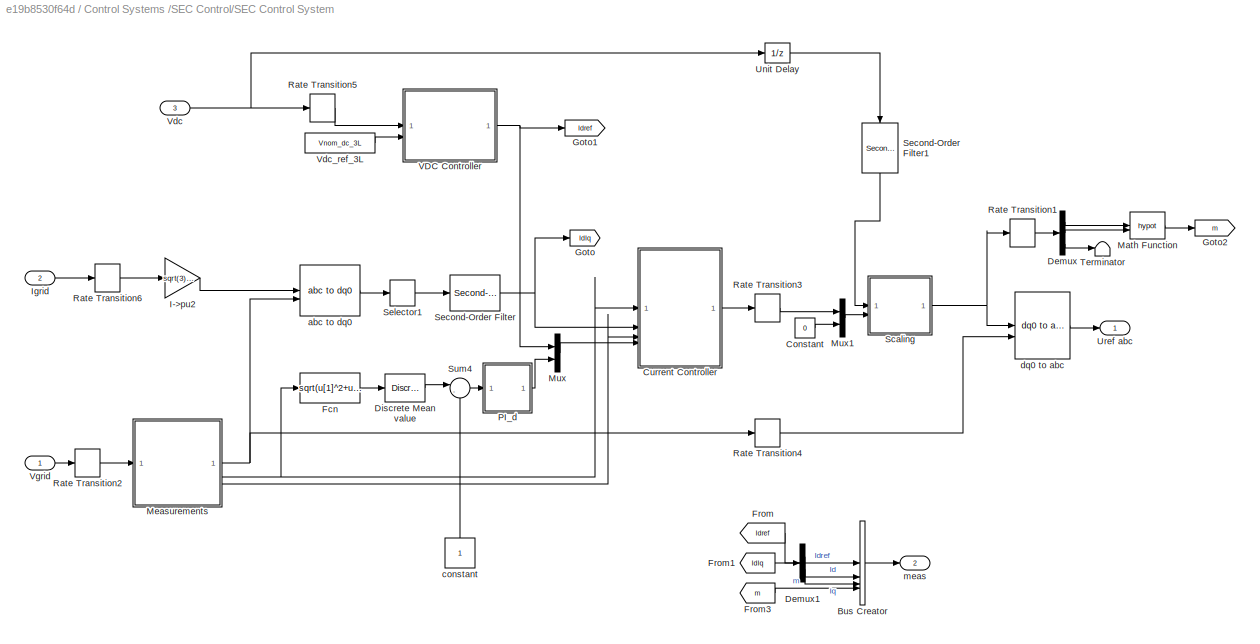
BLOCK [SubSystem] Control Systems /SEC Control/SEC Control System
BLOCK [BusCreator] Control Systems /SEC Control/SEC Control System/Bus Creator
  DisplayOption = bar
  InheritFromInputs = on
  Inputs = 4
BLOCK [Constant] Control Systems /SEC Control/SEC Control System/Constant
  Value = 0
BLOCK [SubSystem] Control Systems /SEC Control/SEC Control System/Current Controller
BLOCK [Sum] Control Systems /SEC Control/SEC Control System/Current Controller/Add1
  IconShape = rectangular
  Inputs = +-
BLOCK [Sum] Control Systems /SEC Control/SEC Control System/Current Controller/Add3
  IconShape = rectangular
  Inputs = +-
BLOCK [Demux] Control Systems /SEC Control/SEC Control System/Current Controller/Demux1
  Outputs = 2
BLOCK [Demux] Control Systems /SEC Control/SEC Control System/Current Controller/Demux2
  Outputs = 2
BLOCK [Demux] Control Systems /SEC Control/SEC Control System/Current Controller/Demux3
  Outputs = 2
BLOCK [Inport] Control Systems /SEC Control/SEC Control System/Current Controller/Freq
  Port = 3
  PortDimensions = 1
BLOCK [From] Control Systems /SEC Control/SEC Control System/Current Controller/From
  GotoTag = Vd
BLOCK [From] Control Systems /SEC Control/SEC Control System/Current Controller/From2
  GotoTag = Id
BLOCK [From] Control Systems /SEC Control/SEC Control System/Current Controller/From3
  GotoTag = Vq
BLOCK [From] Control Systems /SEC Control/SEC Control System/Current Controller/From4
  GotoTag = Id_ref
BLOCK [From] Control Systems /SEC Control/SEC Control System/Current Controller/From7
  GotoTag = Iq
BLOCK [From] Control Systems /SEC Control/SEC Control System/Current Controller/From8
  GotoTag = Iq_ref
BLOCK [Goto] Control Systems /SEC Control/SEC Control System/Current Controller/Goto
  GotoTag = Id
BLOCK [Goto] Control Systems /SEC Control/SEC Control System/Current Controller/Goto1
  GotoTag = w
BLOCK [Goto] Control Systems /SEC Control/SEC Control System/Current Controller/Goto2
  GotoTag = Iq
BLOCK [Goto] Control Systems /SEC Control/SEC Control System/Current Controller/Goto3
  GotoTag = Id_ref
BLOCK [Goto] Control Systems /SEC Control/SEC Control System/Current Controller/Goto4
  GotoTag = Iq_ref
BLOCK [Goto] Control Systems /SEC Control/SEC Control System/Current Controller/Goto5
  GotoTag = Vd
BLOCK [Goto] Control Systems /SEC Control/SEC Control System/Current Controller/Goto6
  GotoTag = Vq
BLOCK [Goto] Control Systems /SEC Control/SEC Control System/Current Controller/Goto7
  GotoTag = PId
BLOCK [Goto] Control Systems /SEC Control/SEC Control System/Current Controller/Goto8
  GotoTag = PIq
BLOCK [Inport] Control Systems /SEC Control/SEC Control System/Current Controller/IdIq
  Port = 2
  PortDimensions = 2
BLOCK [Inport] Control Systems /SEC Control/SEC Control System/Current Controller/IdIq_ref
  NameLocation = top
  Port = 4
  PortDimensions = 2
BLOCK [Mux] Control Systems /SEC Control/SEC Control System/Current Controller/Mux
  DisplayOption = bar
  Inputs = 2
BLOCK [SubSystem] Control Systems /SEC Control/SEC Control System/Current Controller/PI_d
  DialogController = POWERSYS.PowerSysDialog
BLOCK [DiscreteIntegrator] Control Systems /SEC Control/SEC Control System/Current Controller/PI_d/Discrete-Time Integrator
  ICPrevOutput = DiscIntNeverNeededParam
  ICPrevScaledInput = DiscIntNeverNeededParam
  InitialCondition = Init
  LimitOutput = on
  LowerSaturationLimit = LowerLimit
  SampleTime = Ts
  UpperSaturationLimit = UpperLimit
BLOCK [Inport] Control Systems /SEC Control/SEC Control System/Current Controller/PI_d/Error
  SampleTime = Ts
BLOCK [Gain] Control Systems /SEC Control/SEC Control System/Current Controller/PI_d/Kp4
  Gain = Kp
  OutDataTypeStr = Inherit: Same as input
  ParamDataTypeStr = Inherit: Same as input
  SampleTime = Ts
  SaturateOnIntegerOverflow = on
BLOCK [Gain] Control Systems /SEC Control/SEC Control System/Current Controller/PI_d/Kp5
  Gain = Ki
  OutDataTypeStr = Inherit: Same as input
  ParamDataTypeStr = Inherit: Same as input
  SampleTime = Ts
  SaturateOnIntegerOverflow = on
BLOCK [Outport] Control Systems /SEC Control/SEC Control System/Current Controller/PI_d/Out
  InitialOutput = 0
  SampleTime = Ts
BLOCK [Saturate] Control Systems /SEC Control/SEC Control System/Current Controller/PI_d/Saturation2
  LowerLimit = LowerLimit
  NameLocation = top
  SampleTime = Ts
  UpperLimit = UpperLimit
BLOCK [Sum] Control Systems /SEC Control/SEC Control System/Current Controller/PI_d/Sum6
  IconShape = rectangular
  InputSameDT = on
  OutDataTypeStr = Inherit: Same as first input
  SampleTime = Ts
  SaturateOnIntegerOverflow = on
BLOCK [ZeroOrderHold] Control Systems /SEC Control/SEC Control System/Current Controller/PI_d/Zero-Order Hold
  SampleTime = Ts
BLOCK [SubSystem] Control Systems /SEC Control/SEC Control System/Current Controller/PI_q
  DialogController = POWERSYS.PowerSysDialog
BLOCK [DiscreteIntegrator] Control Systems /SEC Control/SEC Control System/Current Controller/PI_q/Discrete-Time Integrator
  ICPrevOutput = DiscIntNeverNeededParam
  ICPrevScaledInput = DiscIntNeverNeededParam
  InitialCondition = Init
  LimitOutput = on
  LowerSaturationLimit = LowerLimit
  SampleTime = Ts
  UpperSaturationLimit = UpperLimit
BLOCK [Inport] Control Systems /SEC Control/SEC Control System/Current Controller/PI_q/Error
  SampleTime = Ts
BLOCK [Gain] Control Systems /SEC Control/SEC Control System/Current Controller/PI_q/Kp4
  Gain = Kp
  OutDataTypeStr = Inherit: Same as input
  ParamDataTypeStr = Inherit: Same as input
  SampleTime = Ts
  SaturateOnIntegerOverflow = on
BLOCK [Gain] Control Systems /SEC Control/SEC Control System/Current Controller/PI_q/Kp5
  Gain = Ki
  OutDataTypeStr = Inherit: Same as input
  ParamDataTypeStr = Inherit: Same as input
  SampleTime = Ts
  SaturateOnIntegerOverflow = on
BLOCK [Outport] Control Systems /SEC Control/SEC Control System/Current Controller/PI_q/Out
  InitialOutput = 0
  SampleTime = Ts
BLOCK [Saturate] Control Systems /SEC Control/SEC Control System/Current Controller/PI_q/Saturation2
  LowerLimit = LowerLimit
  NameLocation = top
  SampleTime = Ts
  UpperLimit = UpperLimit
BLOCK [Sum] Control Systems /SEC Control/SEC Control System/Current Controller/PI_q/Sum6
  IconShape = rectangular
  InputSameDT = on
  OutDataTypeStr = Inherit: Same as first input
  SampleTime = Ts
  SaturateOnIntegerOverflow = on
BLOCK [ZeroOrderHold] Control Systems /SEC Control/SEC Control System/Current Controller/PI_q/Zero-Order Hold
  SampleTime = Ts
BLOCK [Gain] Control Systems /SEC Control/SEC Control System/Current Controller/Rtot_pu3
  Gain = 1/Fnom
  NameLocation = top
  OutDataTypeStr = Inherit: Same as input
  ParamDataTypeStr = Inherit: Same as input
  SaturateOnIntegerOverflow = on
BLOCK [Saturate] Control Systems /SEC Control/SEC Control System/Current Controller/Saturation
  LowerLimit = LimitL_Ireg_3L
  UpperLimit = LimitU_Ireg_3L
BLOCK [Sum] Control Systems /SEC Control/SEC Control System/Current Controller/Sum
  Inputs = |-+
BLOCK [Sum] Control Systems /SEC Control/SEC Control System/Current Controller/Sum1
  Inputs = |-+
BLOCK [Inport] Control Systems /SEC Control/SEC Control System/Current Controller/VdVq
  PortDimensions = 2
BLOCK [Outport] Control Systems /SEC Control/SEC Control System/Current Controller/VdVq_conv
BLOCK [Demux] Control Systems /SEC Control/SEC Control System/Demux
  Outputs = 3
BLOCK [Demux] Control Systems /SEC Control/SEC Control System/Demux1
  Outputs = 2
BLOCK [Reference] Control Systems /SEC Control/SEC Control System/Discrete Mean value  REF=powerlib_extras/Discrete
Measurements/Discrete 
Mean value
  SourceBlock = powerlib_extras/Discrete\nMeasurements/Discrete \nMean value
  SourceType = Discrete Mean value
BLOCK [Fcn] Control Systems /SEC Control/SEC Control System/Fcn
  Expr = sqrt(u[1]^2+u[2]^2)
  SampleTime = Ts_Control
BLOCK [From] Control Systems /SEC Control/SEC Control System/From
  GotoTag = Idref
BLOCK [From] Control Systems /SEC Control/SEC Control System/From1
  GotoTag = IdIq
BLOCK [From] Control Systems /SEC Control/SEC Control System/From3
  GotoTag = m
BLOCK [Goto] Control Systems /SEC Control/SEC Control System/Goto
  GotoTag = IdIq
BLOCK [Goto] Control Systems /SEC Control/SEC Control System/Goto1
  GotoTag = Idref
BLOCK [Goto] Control Systems /SEC Control/SEC Control System/Goto2
  GotoTag = m
BLOCK [Gain] Control Systems /SEC Control/SEC Control System/I->pu2
  Gain = sqrt(3)*Vnom_prim_3L/sqrt(2)/Pnom_3L
  OutDataTypeStr = Inherit: Same as input
  ParamDataTypeStr = Inherit: Same as input
  SaturateOnIntegerOverflow = on
BLOCK [Inport] Control Systems /SEC Control/SEC Control System/Igrid
  Port = 2
  PortDimensions = 3
BLOCK [Math] Control Systems /SEC Control/SEC Control System/Math Function
  NameLocation = top
  Operator = hypot
  SignedPower = on
BLOCK [SubSystem] Control Systems /SEC Control/SEC Control System/Measurements
BLOCK [Outport] Control Systems /SEC Control/SEC Control System/Measurements/Freq
  Port = 3
BLOCK [Reference] Control Systems /SEC Control/SEC Control System/Measurements/PLL (3ph)  REF=spsPLL3phLib/PLL
(3ph)
  LibrarySourceBlock = sps_lib/Control/PLL\n(3ph)
  SourceBlock = spsPLL3phLib/PLL\n(3ph)
  SourceType = PLL (3ph)
BLOCK [Selector] Control Systems /SEC Control/SEC Control System/Measurements/Selector2
  IndexOptions = Index vector (dialog)
  Indices = [1 2]
  InputPortWidth = 3
  OutputSizes = 1
BLOCK [Gain] Control Systems /SEC Control/SEC Control System/Measurements/V->pu1
  Gain = 1/(Vnom_prim_3L*sqrt(2)/sqrt(3))
  OutDataTypeStr = Inherit: Same as input
  ParamDataTypeStr = Inherit: Same as input
  SaturateOnIntegerOverflow = on
BLOCK [Inport] Control Systems /SEC Control/SEC Control System/Measurements/Vabc
  NameLocation = top
  PortDimensions = 3
BLOCK [Outport] Control Systems /SEC Control/SEC Control System/Measurements/VdVq
  Port = 2
BLOCK [Reference] Control Systems /SEC Control/SEC Control System/Measurements/abc to dq1  REF=spsabctodq0Lib/abc to dq0
  LibrarySourceBlock = sps_lib/Control/abc to dq0
  SourceBlock = spsabctodq0Lib/abc to dq0
  SourceType = abc to dq0 Transformation
BLOCK [Outport] Control Systems /SEC Control/SEC Control System/Measurements/wt
BLOCK [Mux] Control Systems /SEC Control/SEC Control System/Mux
  DisplayOption = bar
  Inputs = 2
BLOCK [Mux] Control Systems /SEC Control/SEC Control System/Mux1
  DisplayOption = bar
  Inputs = [2 1]
BLOCK [SubSystem] Control Systems /SEC Control/SEC Control System/PI_d
  DialogController = POWERSYS.PowerSysDialog
BLOCK [DiscreteIntegrator] Control Systems /SEC Control/SEC Control System/PI_d/Discrete-Time Integrator
  ICPrevOutput = DiscIntNeverNeededParam
  ICPrevScaledInput = DiscIntNeverNeededParam
  InitialCondition = Init
  LimitOutput = on
  LowerSaturationLimit = LowerLimit
  SampleTime = Ts
  UpperSaturationLimit = UpperLimit
BLOCK [Inport] Control Systems /SEC Control/SEC Control System/PI_d/Error
  SampleTime = Ts
BLOCK [Gain] Control Systems /SEC Control/SEC Control System/PI_d/Kp4
  Gain = Kp
  OutDataTypeStr = Inherit: Same as input
  ParamDataTypeStr = Inherit: Same as input
  SampleTime = Ts
  SaturateOnIntegerOverflow = on
BLOCK [Gain] Control Systems /SEC Control/SEC Control System/PI_d/Kp5
  Gain = Ki
  OutDataTypeStr = Inherit: Same as input
  ParamDataTypeStr = Inherit: Same as input
  SampleTime = Ts
  SaturateOnIntegerOverflow = on
BLOCK [Outport] Control Systems /SEC Control/SEC Control System/PI_d/Out
  InitialOutput = 0
  SampleTime = Ts
BLOCK [Saturate] Control Systems /SEC Control/SEC Control System/PI_d/Saturation2
  LowerLimit = LowerLimit
  NameLocation = top
  SampleTime = Ts
  UpperLimit = UpperLimit
BLOCK [Sum] Control Systems /SEC Control/SEC Control System/PI_d/Sum6
  IconShape = rectangular
  InputSameDT = on
  OutDataTypeStr = Inherit: Same as first input
  SampleTime = Ts
  SaturateOnIntegerOverflow = on
BLOCK [ZeroOrderHold] Control Systems /SEC Control/SEC Control System/PI_d/Zero-Order Hold
  SampleTime = Ts
BLOCK [RateTransition] Control Systems /SEC Control/SEC Control System/Rate Transition1
  OutPortSampleTime = Ts_Control
BLOCK [RateTransition] Control Systems /SEC Control/SEC Control System/Rate Transition2
  OutPortSampleTime = Ts_Control
BLOCK [RateTransition] Control Systems /SEC Control/SEC Control System/Rate Transition3
  OutPortSampleTime = Ts_PWM
BLOCK [RateTransition] Control Systems /SEC Control/SEC Control System/Rate Transition4
  OutPortSampleTime = Ts_PWM
BLOCK [RateTransition] Control Systems /SEC Control/SEC Control System/Rate Transition5
  OutPortSampleTime = Ts_Control
BLOCK [RateTransition] Control Systems /SEC Control/SEC Control System/Rate Transition6
  OutPortSampleTime = Ts_Control
BLOCK [SubSystem] Control Systems /SEC Control/SEC Control System/Scaling
BLOCK [Saturate] Control Systems /SEC Control/SEC Control System/Scaling/0.8 to 1.2 x Vnom_dc
  LowerLimit = 0.5*Vnom_dc_3L
  UpperLimit = 1.5*Vnom_dc_3L
BLOCK [Constant] Control Systems /SEC Control/SEC Control System/Scaling/Constant1
  Value = Vnom_sec_3L
BLOCK [Gain] Control Systems /SEC Control/SEC Control System/Scaling/Gain1
  Gain = 0.5/sqrt(2)*sqrt(3)
BLOCK [Product] Control Systems /SEC Control/SEC Control System/Scaling/Product
  Inputs = */
BLOCK [Product] Control Systems /SEC Control/SEC Control System/Scaling/Product1
  Inputs = **
BLOCK [Inport] Control Systems /SEC Control/SEC Control System/Scaling/VdVq
  Port = 2
BLOCK [Outport] Control Systems /SEC Control/SEC Control System/Scaling/VdVq*
BLOCK [Inport] Control Systems /SEC Control/SEC Control System/Scaling/Vdc
BLOCK [Reference] Control Systems /SEC Control/SEC Control System/Second-Order Filter  REF=spsSecondOrderFilterLib/Second-Order
Filter
  LibrarySourceBlock = sps_lib/Control/Filters/Second-Order\nFilter
  SourceBlock = spsSecondOrderFilterLib/Second-Order\nFilter
  SourceType = Second-Order Filter
BLOCK [Reference] Control Systems /SEC Control/SEC Control System/Second-Order Filter1  REF=spsSecondOrderFilterLib/Second-Order
Filter
  LibrarySourceBlock = sps_lib/Control/Filters/Second-Order\nFilter
  NameLocation = left
  SourceBlock = spsSecondOrderFilterLib/Second-Order\nFilter
  SourceType = Second-Order Filter
BLOCK [Selector] Control Systems /SEC Control/SEC Control System/Selector1
  IndexOptions = Index vector (dialog)
  Indices = [1 2]
  InputPortWidth = 3
  OutputSizes = 1
BLOCK [Sum] Control Systems /SEC Control/SEC Control System/Sum4
  Inputs = |-+
BLOCK [Terminator] Control Systems /SEC Control/SEC Control System/Terminator
BLOCK [UnitDelay] Control Systems /SEC Control/SEC Control System/Unit Delay
  HasFrameUpgradeWarning = on
  SampleTime = Ts_PWM
BLOCK [Outport] Control Systems /SEC Control/SEC Control System/Uref abc
BLOCK [SubSystem] Control Systems /SEC Control/SEC Control System/VDC Controller
  NameLocation = top
BLOCK [Gain] Control Systems /SEC Control/SEC Control System/VDC Controller/Gain
  Gain = 1/(Vnom_dc_3L)
BLOCK [Outport] Control Systems /SEC Control/SEC Control System/VDC Controller/Idref
BLOCK [SubSystem] Control Systems /SEC Control/SEC Control System/VDC Controller/PI_d
  DialogController = POWERSYS.PowerSysDialog
BLOCK [DiscreteIntegrator] Control Systems /SEC Control/SEC Control System/VDC Controller/PI_d/Discrete-Time Integrator
  ICPrevOutput = DiscIntNeverNeededParam
  ICPrevScaledInput = DiscIntNeverNeededParam
  InitialCondition = Init
  LimitOutput = on
  LowerSaturationLimit = LowerLimit
  SampleTime = Ts
  UpperSaturationLimit = UpperLimit
BLOCK [Inport] Control Systems /SEC Control/SEC Control System/VDC Controller/PI_d/Error
  SampleTime = Ts
BLOCK [Gain] Control Systems /SEC Control/SEC Control System/VDC Controller/PI_d/Kp4
  Gain = Kp
  OutDataTypeStr = Inherit: Same as input
  ParamDataTypeStr = Inherit: Same as input
  SampleTime = Ts
  SaturateOnIntegerOverflow = on
BLOCK [Gain] Control Systems /SEC Control/SEC Control System/VDC Controller/PI_d/Kp5
  Gain = Ki
  OutDataTypeStr = Inherit: Same as input
  ParamDataTypeStr = Inherit: Same as input
  SampleTime = Ts
  SaturateOnIntegerOverflow = on
BLOCK [Outport] Control Systems /SEC Control/SEC Control System/VDC Controller/PI_d/Out
  InitialOutput = 0
  SampleTime = Ts
BLOCK [Saturate] Control Systems /SEC Control/SEC Control System/VDC Controller/PI_d/Saturation2
  LowerLimit = LowerLimit
  NameLocation = top
  SampleTime = Ts
  UpperLimit = UpperLimit
BLOCK [Sum] Control Systems /SEC Control/SEC Control System/VDC Controller/PI_d/Sum6
  IconShape = rectangular
  InputSameDT = on
  OutDataTypeStr = Inherit: Same as first input
  SampleTime = Ts
  SaturateOnIntegerOverflow = on
BLOCK [ZeroOrderHold] Control Systems /SEC Control/SEC Control System/VDC Controller/PI_d/Zero-Order Hold
  SampleTime = Ts
BLOCK [Sum] Control Systems /SEC Control/SEC Control System/VDC Controller/Sum
  Inputs = |+-
BLOCK [Inport] Control Systems /SEC Control/SEC Control System/VDC Controller/Vdc
  NameLocation = top
  PortDimensions = 1
BLOCK [Inport] Control Systems /SEC Control/SEC Control System/VDC Controller/Vdc_ref
  NameLocation = top
  Port = 2
  PortDimensions = 1
BLOCK [Inport] Control Systems /SEC Control/SEC Control System/Vdc
  Port = 3
BLOCK [Constant] Control Systems /SEC Control/SEC Control System/Vdc_ref_3L
  Value = Vnom_dc_3L
BLOCK [Inport] Control Systems /SEC Control/SEC Control System/Vgrid
  PortDimensions = 3
BLOCK [Reference] Control Systems /SEC Control/SEC Control System/abc to dq0  REF=spsabctodq0Lib/abc to dq0
  LibrarySourceBlock = sps_lib/Control/abc to dq0
  SourceBlock = spsabctodq0Lib/abc to dq0
  SourceType = abc to dq0 Transformation
BLOCK [Constant] Control Systems /SEC Control/SEC Control System/constant
  NameLocation = left
  SampleTime = Ts_Control
BLOCK [Reference] Control Systems /SEC Control/SEC Control System/dq0 to abc  REF=spsdq0toabcLib/dq0 to abc
  LibrarySourceBlock = sps_lib/Control/dq0 to abc
  SourceBlock = spsdq0toabcLib/dq0 to abc
  SourceType = dq0 to abc Transformation
BLOCK [Outport] Control Systems /SEC Control/SEC Control System/meas
  Port = 2
BLOCK [UnitDelay] Control Systems /SEC Control/Unit Delay
  HasFrameUpgradeWarning = on
  SampleTime = Ts_Power
BLOCK [UnitDelay] Control Systems /SEC Control/Unit Delay1
  HasFrameUpgradeWarning = on
  SampleTime = Ts_Power
BLOCK [UnitDelay] Control Systems /SEC Control/Unit Delay2
  HasFrameUpgradeWarning = on
  SampleTime = Ts_Power
BLOCK [Reference] Current Measurement  REF=spsCurrentMeasurementLib/Current Measurement
  LibrarySourceBlock = sps_lib/Sensors and Measurements/Current Measurement
  SourceBlock = spsCurrentMeasurementLib/Current Measurement
  SourceType = Current Measurement
  UserDataPersistent = on
BLOCK [Reference] Current Measurement1  REF=spsCurrentMeasurementLib/Current Measurement
  LibrarySourceBlock = sps_lib/Sensors and Measurements/Current Measurement
  NameLocation = top
  SourceBlock = spsCurrentMeasurementLib/Current Measurement
  SourceType = Current Measurement
  UserDataPersistent = on
BLOCK [Reference] Current Measurement2  REF=spsCurrentMeasurementLib/Current Measurement
  LibrarySourceBlock = sps_lib/Sensors and Measurements/Current Measurement
  SourceBlock = spsCurrentMeasurementLib/Current Measurement
  SourceType = Current Measurement
  UserDataPersistent = on
BLOCK [Reference] Current Measurement3  REF=spsCurrentMeasurementLib/Current Measurement
  LibrarySourceBlock = sps_lib/Sensors and Measurements/Current Measurement
  NameLocation = top
  SourceBlock = spsCurrentMeasurementLib/Current Measurement
  SourceType = Current Measurement
  UserDataPersistent = on
BLOCK [SubSystem] DC
BLOCK [Sum] DC/Add
  IconShape = rectangular
BLOCK [Goto] DC/Goto
  GotoTag = Vdc_3L
  TagVisibility = global
BLOCK [Goto] DC/Goto1
  GotoTag = VdcM_3L
  TagVisibility = global
BLOCK [Goto] DC/Goto2
  GotoTag = VdcP_3L
  TagVisibility = global
BLOCK [Goto] DC/Goto3
  GotoTag = V_PlusA
  TagVisibility = global
BLOCK [Goto] DC/Goto4
  GotoTag = V_MinusA
  TagVisibility = global
BLOCK [Reference] DC/Ground  REF=spsGroundLib/Ground
  LibrarySourceBlock = sps_lib/Utilities/Ground
  NameLocation = right
  SourceBlock = spsGroundLib/Ground
  SourceType = Ground
BLOCK [Reference] DC/Ground1  REF=spsGroundLib/Ground
  LibrarySourceBlock = sps_lib/Utilities/Ground
  NameLocation = right
  SourceBlock = spsGroundLib/Ground
  SourceType = Ground
BLOCK [PMIOPort] DC/M
  Port = 3
  Side = Left
BLOCK [PMIOPort] DC/N
  Port = 2
  Side = Left
BLOCK [PMIOPort] DC/P
  Side = Left
BLOCK [Reference] DC/VM1  REF=spsVoltageMeasurementLib/Voltage Measurement
  LibrarySourceBlock = sps_lib/Sensors and Measurements/Voltage Measurement
  SourceBlock = spsVoltageMeasurementLib/Voltage Measurement
  SourceType = Voltage Measurement
  UserDataPersistent = on
BLOCK [Reference] DC/VM2  REF=spsVoltageMeasurementLib/Voltage Measurement
  LibrarySourceBlock = sps_lib/Sensors and Measurements/Voltage Measurement
  SourceBlock = spsVoltageMeasurementLib/Voltage Measurement
  SourceType = Voltage Measurement
  UserDataPersistent = on
BLOCK [Reference] DC/VM3  REF=spsVoltageMeasurementLib/Voltage Measurement
  LibrarySourceBlock = sps_lib/Sensors and Measurements/Voltage Measurement
  SourceBlock = spsVoltageMeasurementLib/Voltage Measurement
  SourceType = Voltage Measurement
  UserDataPersistent = on
BLOCK [Reference] DC/VM4  REF=spsVoltageMeasurementLib/Voltage Measurement
  LibrarySourceBlock = sps_lib/Sensors and Measurements/Voltage Measurement
  SourceBlock = spsVoltageMeasurementLib/Voltage Measurement
  SourceType = Voltage Measurement
  UserDataPersistent = on
BLOCK [PMIOPort] DC/m
  Port = 6
  Side = Right
BLOCK [PMIOPort] DC/n
  Port = 5
  Side = Right
BLOCK [PMIOPort] DC/p
  Port = 4
  Side = Right
BLOCK [SubSystem] DC_
BLOCK [Sum] DC_/Add
  IconShape = rectangular
BLOCK [Goto] DC_/Goto
  GotoTag = Vdc_inv
  TagVisibility = global
BLOCK [Goto] DC_/Goto1
  GotoTag = VdcM_inv
  TagVisibility = global
BLOCK [Goto] DC_/Goto2
  GotoTag = VdcP_inv
  TagVisibility = global
BLOCK [Goto] DC_/Goto3
  GotoTag = V_PlusB
  TagVisibility = global
BLOCK [Goto] DC_/Goto4
  GotoTag = V_MinusB
  TagVisibility = global
BLOCK [Reference] DC_/Ground  REF=spsGroundLib/Ground
  LibrarySourceBlock = sps_lib/Utilities/Ground
  NameLocation = right
  SourceBlock = spsGroundLib/Ground
  SourceType = Ground
BLOCK [Reference] DC_/Ground1  REF=spsGroundLib/Ground
  LibrarySourceBlock = sps_lib/Utilities/Ground
  NameLocation = right
  SourceBlock = spsGroundLib/Ground
  SourceType = Ground
BLOCK [PMIOPort] DC_/M
  Port = 3
  Side = Left
BLOCK [PMIOPort] DC_/N
  Port = 2
  Side = Left
BLOCK [PMIOPort] DC_/P
  Side = Left
BLOCK [Reference] DC_/VM1  REF=spsVoltageMeasurementLib/Voltage Measurement
  LibrarySourceBlock = sps_lib/Sensors and Measurements/Voltage Measurement
  SourceBlock = spsVoltageMeasurementLib/Voltage Measurement
  SourceType = Voltage Measurement
  UserDataPersistent = on
BLOCK [Reference] DC_/VM2  REF=spsVoltageMeasurementLib/Voltage Measurement
  LibrarySourceBlock = sps_lib/Sensors and Measurements/Voltage Measurement
  SourceBlock = spsVoltageMeasurementLib/Voltage Measurement
  SourceType = Voltage Measurement
  UserDataPersistent = on
BLOCK [Reference] DC_/VM3  REF=spsVoltageMeasurementLib/Voltage Measurement
  LibrarySourceBlock = sps_lib/Sensors and Measurements/Voltage Measurement
  SourceBlock = spsVoltageMeasurementLib/Voltage Measurement
  SourceType = Voltage Measurement
  UserDataPersistent = on
BLOCK [Reference] DC_/VM4  REF=spsVoltageMeasurementLib/Voltage Measurement
  LibrarySourceBlock = sps_lib/Sensors and Measurements/Voltage Measurement
  SourceBlock = spsVoltageMeasurementLib/Voltage Measurement
  SourceType = Voltage Measurement
  UserDataPersistent = on
BLOCK [PMIOPort] DC_/m
  Port = 6
  Side = Right
BLOCK [PMIOPort] DC_/n
  Port = 5
  Side = Right
BLOCK [PMIOPort] DC_/p
  Port = 4
  Side = Right
BLOCK [Reference] Filter1  REF=spsThreePhaseHarmonicFilterLib/Three-Phase
Harmonic Filter
  AttributesFormatString = \n
  LibrarySourceBlock = sps_lib/Passives/Three-Phase\nHarmonic Filter
  NameLocation = right
  SourceBlock = spsThreePhaseHarmonicFilterLib/Three-Phase\nHarmonic Filter
  SourceType = Three-Phase Harmonic Filter
BLOCK [Reference] Filter2  REF=spsThreePhaseHarmonicFilterLib/Three-Phase
Harmonic Filter
  AttributesFormatString = \n
  LibrarySourceBlock = sps_lib/Passives/Three-Phase\nHarmonic Filter
  NameLocation = right
  SourceBlock = spsThreePhaseHarmonicFilterLib/Three-Phase\nHarmonic Filter
  SourceType = Three-Phase Harmonic Filter
BLOCK [From] From1
  GotoTag = BL_3L
  TagVisibility = global
BLOCK [From] From2
  GotoTag = g_inv
  TagVisibility = global
BLOCK [From] From_3L
  GotoTag = g_3L
  TagVisibility = global
BLOCK [Goto] Goto
  GotoTag = I_PlusA
  TagVisibility = global
BLOCK [Goto] Goto1
  GotoTag = I_MinusA
  TagVisibility = global
BLOCK [Goto] Goto2
  GotoTag = I_PlusB
  TagVisibility = global
BLOCK [Goto] Goto3
  GotoTag = I_MinusB
  TagVisibility = global
BLOCK [Reference] Ground  REF=spsGroundLib/Ground
  LibrarySourceBlock = sps_lib/Utilities/Ground
  NameLocation = right
  SourceBlock = spsGroundLib/Ground
  SourceType = Ground
BLOCK [Reference] Ground1  REF=spsGroundLib/Ground
  LibrarySourceBlock = sps_lib/Utilities/Ground
  NameLocation = right
  SourceBlock = spsGroundLib/Ground
  SourceType = Ground
BLOCK [Reference] REC  REF=spsThreeLevelNPCConverterLib/Three-Level
NPC Converter
  LibrarySourceBlock = sps_lib/Power Electronics/Three-Level\nNPC Converter
  NameLocation = top
  SourceBlock = spsThreeLevelNPCConverterLib/Three-Level\nNPC Converter
  SourceType = Three-Level NPC Converter
BLOCK [Reference] SEC  REF=spsThreeLevelNPCConverterLib/Three-Level
NPC Converter
  AttributesFormatString = %<ModelType>
  LibrarySourceBlock = sps_lib/Power Electronics/Three-Level\nNPC Converter
  SourceBlock = spsThreeLevelNPCConverterLib/Three-Level\nNPC Converter
  SourceType = Three-Level NPC Converter
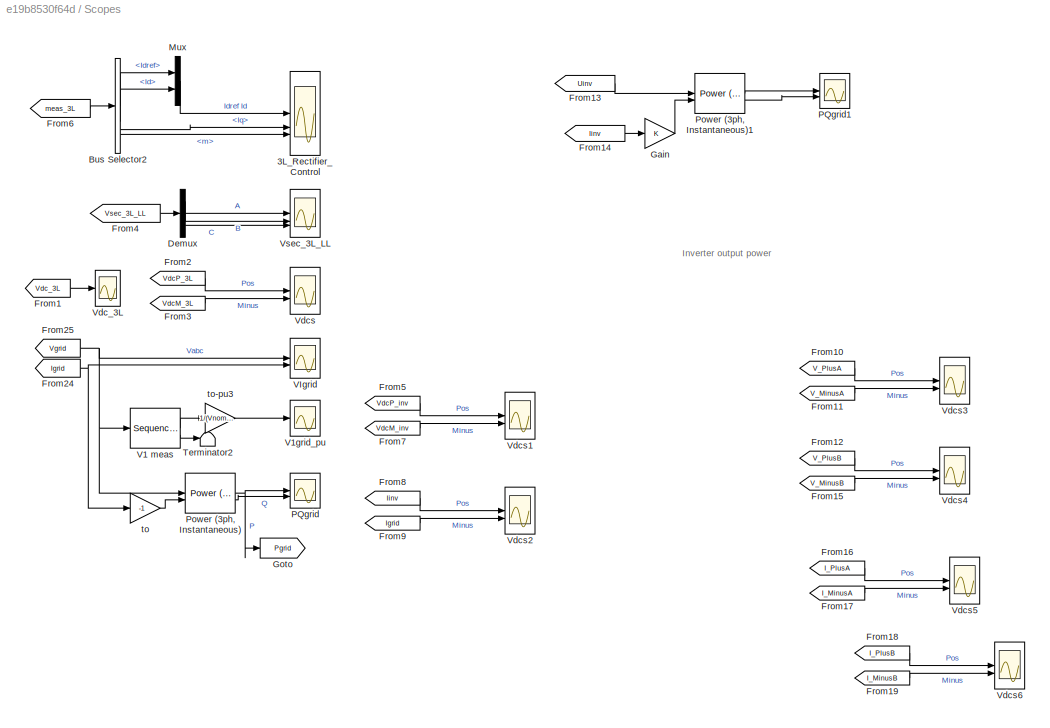
BLOCK [SubSystem] Scopes
BLOCK [Scope] Scopes/3L_Rectifier_Control
  Floating = off
  NumInputPorts = 3
  ScopeSpecificationString = Simulink.scopes.TimeScopeBlockCfg('CurrentConfiguration', extmgr.ConfigurationSet(extmgr.Configuration('Core','General UI',true,'FigureColor',[0.156862745098039 0.156862745098039 0.156862745098039]),extmgr.Configuration('Core','Source UI',true),extmgr.Configuration('Sources','WiredSimulink',true,'DataLoggingVariableName','Va_Inv','DataLoggingSaveFormat','StructureWithTime','DataLoggingDecimation',...<+3121ch>
BLOCK [BusSelector] Scopes/Bus Selector2
  OutputSignals = Idref,Id,Iq,m
BLOCK [Demux] Scopes/Demux
  Outputs = 3
BLOCK [From] Scopes/From1
  GotoTag = Vdc_3L
  TagVisibility = global
BLOCK [From] Scopes/From10
  GotoTag = V_PlusA
  TagVisibility = global
BLOCK [From] Scopes/From11
  GotoTag = V_MinusA
  TagVisibility = global
BLOCK [From] Scopes/From12
  GotoTag = V_PlusB
  TagVisibility = global
BLOCK [From] Scopes/From13
  CloseFcn = tagdialog Close
  GotoTag = Uinv
  TagVisibility = global
BLOCK [From] Scopes/From14
  CloseFcn = tagdialog Close
  GotoTag = Iinv
  TagVisibility = global
BLOCK [From] Scopes/From15
  GotoTag = V_MinusB
  TagVisibility = global
BLOCK [From] Scopes/From16
  GotoTag = I_PlusA
  TagVisibility = global
BLOCK [From] Scopes/From17
  GotoTag = I_MinusA
  TagVisibility = global
BLOCK [From] Scopes/From18
  GotoTag = I_PlusB
  TagVisibility = global
BLOCK [From] Scopes/From19
  GotoTag = I_MinusB
  TagVisibility = global
BLOCK [From] Scopes/From2
  GotoTag = VdcP_3L
  TagVisibility = global
BLOCK [From] Scopes/From24
  GotoTag = Igrid
  TagVisibility = global
BLOCK [From] Scopes/From25
  GotoTag = Vgrid
  TagVisibility = global
BLOCK [From] Scopes/From3
  GotoTag = VdcM_3L
  TagVisibility = global
BLOCK [From] Scopes/From4
  GotoTag = Vsec_3L_LL
  TagVisibility = global
BLOCK [From] Scopes/From5
  GotoTag = VdcP_inv
  TagVisibility = global
BLOCK [From] Scopes/From6
  GotoTag = meas_3L
  TagVisibility = global
BLOCK [From] Scopes/From7
  GotoTag = VdcM_inv
  TagVisibility = global
BLOCK [From] Scopes/From8
  GotoTag = Iinv
  TagVisibility = global
BLOCK [From] Scopes/From9
  GotoTag = Igrid
  TagVisibility = global
BLOCK [Gain] Scopes/Gain
BLOCK [Goto] Scopes/Goto
  GotoTag = Pgrid
BLOCK [Mux] Scopes/Mux
  DisplayOption = bar
  Inputs = 2
BLOCK [Scope] Scopes/PQgrid
  Floating = off
  NumInputPorts = 2
  ScopeSpecificationString = Simulink.scopes.TimeScopeBlockCfg('CurrentConfiguration', extmgr.ConfigurationSet(extmgr.Configuration('Core','General UI',true,'FigureColor',[0.156862745098039 0.156862745098039 0.156862745098039]),extmgr.Configuration('Core','Source UI',true),extmgr.Configuration('Sources','WiredSimulink',true,'DataLoggingVariableName','PQgrid','DataLoggingSaveFormat','StructureWithTime','DataLoggingDecimation',...<+2434ch>
BLOCK [Scope] Scopes/PQgrid1
  Floating = off
  NumInputPorts = 2
  ScopeSpecificationString = Simulink.scopes.TimeScopeBlockCfg('CurrentConfiguration', extmgr.ConfigurationSet(extmgr.Configuration('Core','General UI',true,'FigureColor',[0.156862745098039 0.156862745098039 0.156862745098039]),extmgr.Configuration('Core','Source UI',true),extmgr.Configuration('Sources','WiredSimulink',true,'DataLoggingVariableName','ScopeData1','DataLoggingSaveFormat','StructureWithTime','DataLoggingDecimati...<+2489ch>
BLOCK [Reference] Scopes/Power (3ph, Instantaneous)  REF=spsPower3phInstantaneousLib/Power
(3ph, Instantaneous)
  LibrarySourceBlock = sps_lib/Sensors and Measurements/Power\n(3ph, Instantaneous)
  SourceBlock = spsPower3phInstantaneousLib/Power\n(3ph, Instantaneous)
  SourceType = Power (3ph, Instantaneous)
BLOCK [Reference] Scopes/Power (3ph, Instantaneous)1  REF=spsPower3phInstantaneousLib/Power
(3ph, Instantaneous)
  LibrarySourceBlock = sps_lib/Sensors and Measurements/Power\n(3ph, Instantaneous)
  SourceBlock = spsPower3phInstantaneousLib/Power\n(3ph, Instantaneous)
  SourceType = Power (3ph, Instantaneous)
BLOCK [Terminator] Scopes/Terminator2
BLOCK [Reference] Scopes/V1 meas  REF=spsSequenceAnalyzerLib/Sequence Analyzer
  LibrarySourceBlock = sps_lib/Sensors and Measurements/Sequence Analyzer
  SourceBlock = spsSequenceAnalyzerLib/Sequence Analyzer
  SourceType = Sequence Analyzer
BLOCK [Scope] Scopes/V1grid_pu
  Floating = off
  NumInputPorts = 1
  ScopeSpecificationString = Simulink.scopes.TimeScopeBlockCfg('CurrentConfiguration', extmgr.ConfigurationSet(extmgr.Configuration('Core','General UI',true,'FigureColor',[0.156862745098039 0.156862745098039 0.156862745098039]),extmgr.Configuration('Core','Source UI',true),extmgr.Configuration('Sources','WiredSimulink',true,'DataLogging',true,'DataLoggingVariableName','V1grid_pu','DataLoggingSaveFormat','StructureWithTime','D...<+1795ch>
BLOCK [Scope] Scopes/VIgrid
  Floating = off
  NumInputPorts = 2
  ScopeSpecificationString = Simulink.scopes.TimeScopeBlockCfg('CurrentConfiguration', extmgr.ConfigurationSet(extmgr.Configuration('Core','General UI',true,'FigureColor',[0.156862745098039 0.156862745098039 0.156862745098039]),extmgr.Configuration('Core','Source UI',true),extmgr.Configuration('Sources','WiredSimulink',true,'DataLogging',true,'DataLoggingVariableName','VIgrid','DataLoggingSaveFormat','StructureWithTime','Data...<+2684ch>
BLOCK [Scope] Scopes/Vdc_3L
  Floating = off
  NumInputPorts = 1
  ScopeSpecificationString = Simulink.scopes.TimeScopeBlockCfg('CurrentConfiguration', extmgr.ConfigurationSet(extmgr.Configuration('Core','General UI',true,'FigureColor',[0.156862745098039 0.156862745098039 0.156862745098039]),extmgr.Configuration('Core','Source UI',true),extmgr.Configuration('Sources','WiredSimulink',true,'DataLogging',true,'DataLoggingVariableName','Vdc_3L','DataLoggingSaveFormat','StructureWithTime','Data...<+1782ch>
BLOCK [Scope] Scopes/Vdcs
  Floating = off
  NumInputPorts = 2
  ScopeSpecificationString = Simulink.scopes.TimeScopeBlockCfg('CurrentConfiguration', extmgr.ConfigurationSet(extmgr.Configuration('Core','General UI',true,'FigureColor',[0.156862745098039 0.156862745098039 0.156862745098039]),extmgr.Configuration('Core','Source UI',true),extmgr.Configuration('Sources','WiredSimulink',true,'DataLoggingVariableName','Vdc_3L1','DataLoggingSaveFormat','StructureWithTime','DataLoggingDecimation'...<+2557ch>
BLOCK [Scope] Scopes/Vdcs1
  Floating = off
  NumInputPorts = 2
  ScopeSpecificationString = Simulink.scopes.TimeScopeBlockCfg('CurrentConfiguration', extmgr.ConfigurationSet(extmgr.Configuration('Core','General UI',true,'FigureColor',[0.156862745098039 0.156862745098039 0.156862745098039]),extmgr.Configuration('Core','Source UI',true),extmgr.Configuration('Sources','WiredSimulink',true,'DataLoggingVariableName','ScopeData1','DataLoggingSaveFormat','StructureWithTime','DataLoggingDecimati...<+2554ch>
BLOCK [Scope] Scopes/Vdcs2
  Floating = off
  NumInputPorts = 2
  ScopeSpecificationString = Simulink.scopes.TimeScopeBlockCfg('CurrentConfiguration', extmgr.ConfigurationSet(extmgr.Configuration('Core','General UI',true,'FigureColor',[0.156862745098039 0.156862745098039 0.156862745098039]),extmgr.Configuration('Core','Source UI',true),extmgr.Configuration('Sources','WiredSimulink',true,'DataLoggingVariableName','ScopeData2','DataLoggingSaveFormat','StructureWithTime','DataLoggingDecimati...<+2600ch>
BLOCK [Scope] Scopes/Vdcs3
  Floating = off
  NumInputPorts = 2
  ScopeSpecificationString = Simulink.scopes.TimeScopeBlockCfg('CurrentConfiguration', extmgr.ConfigurationSet(extmgr.Configuration('Core','General UI',true,'FigureColor',[0.156862745098039 0.156862745098039 0.156862745098039]),extmgr.Configuration('Core','Source UI',true),extmgr.Configuration('Sources','WiredSimulink',true,'DataLoggingVariableName','ScopeData1','DataLoggingSaveFormat','StructureWithTime','DataLoggingDecimati...<+2535ch>
BLOCK [Scope] Scopes/Vdcs4
  Floating = off
  NumInputPorts = 2
  ScopeSpecificationString = Simulink.scopes.TimeScopeBlockCfg('CurrentConfiguration', extmgr.ConfigurationSet(extmgr.Configuration('Core','General UI',true,'FigureColor',[0.156862745098039 0.156862745098039 0.156862745098039]),extmgr.Configuration('Core','Source UI',true),extmgr.Configuration('Sources','WiredSimulink',true,'DataLoggingVariableName','ScopeData2','DataLoggingSaveFormat','StructureWithTime','DataLoggingDecimati...<+2535ch>
BLOCK [Scope] Scopes/Vdcs5
  Floating = off
  NumInputPorts = 2
  ScopeSpecificationString = Simulink.scopes.TimeScopeBlockCfg('CurrentConfiguration', extmgr.ConfigurationSet(extmgr.Configuration('Core','General UI',true,'FigureColor',[0.156862745098039 0.156862745098039 0.156862745098039]),extmgr.Configuration('Core','Source UI',true),extmgr.Configuration('Sources','WiredSimulink',true,'DataLoggingVariableName','ScopeData1','DataLoggingSaveFormat','StructureWithTime','DataLoggingDecimati...<+2535ch>
BLOCK [Scope] Scopes/Vdcs6
  Floating = off
  NumInputPorts = 2
  ScopeSpecificationString = Simulink.scopes.TimeScopeBlockCfg('CurrentConfiguration', extmgr.ConfigurationSet(extmgr.Configuration('Core','General UI',true,'FigureColor',[0.156862745098039 0.156862745098039 0.156862745098039]),extmgr.Configuration('Core','Source UI',true),extmgr.Configuration('Sources','WiredSimulink',true,'DataLoggingVariableName','ScopeData2','DataLoggingSaveFormat','StructureWithTime','DataLoggingDecimati...<+2535ch>
BLOCK [Scope] Scopes/Vsec_3L_LL
  Floating = off
  NumInputPorts = 3
  ScopeSpecificationString = Simulink.scopes.TimeScopeBlockCfg('CurrentConfiguration', extmgr.ConfigurationSet(extmgr.Configuration('Core','General UI',true,'FigureColor',[0.156862745098039 0.156862745098039 0.156862745098039]),extmgr.Configuration('Core','Source UI',true),extmgr.Configuration('Sources','WiredSimulink',true,'DataLogging',true,'DataLoggingVariableName','Vsec_3L_LL','DataLoggingSaveFormat','StructureWithTime','...<+3083ch>
BLOCK [Gain] Scopes/to
  Gain = -1
BLOCK [Gain] Scopes/to-pu3
  Gain = 1/(Vnom_grid/sqrt(3)*sqrt(2))
BLOCK [Reference] Series RLC Branch  REF=spsSeriesRLCBranchLib/Series RLC Branch
  LibrarySourceBlock = sps_lib/Passives/Series RLC Branch
  NameLocation = left
  SourceBlock = spsSeriesRLCBranchLib/Series RLC Branch
  SourceType = Series RLC Branch
BLOCK [Reference] Series RLC Branch1  REF=spsSeriesRLCBranchLib/Series RLC Branch
  LibrarySourceBlock = sps_lib/Passives/Series RLC Branch
  NameLocation = left
  SourceBlock = spsSeriesRLCBranchLib/Series RLC Branch
  SourceType = Series RLC Branch
BLOCK [Reference] Series RLC Branch10  REF=spsSeriesRLCBranchLib/Series RLC Branch
  LibrarySourceBlock = sps_lib/Passives/Series RLC Branch
  NameLocation = left
  SourceBlock = spsSeriesRLCBranchLib/Series RLC Branch
  SourceType = Series RLC Branch
BLOCK [Reference] Series RLC Branch11  REF=spsSeriesRLCBranchLib/Series RLC Branch
  LibrarySourceBlock = sps_lib/Passives/Series RLC Branch
  NameLocation = left
  SourceBlock = spsSeriesRLCBranchLib/Series RLC Branch
  SourceType = Series RLC Branch
BLOCK [Reference] Series RLC Branch2  REF=spsSeriesRLCBranchLib/Series RLC Branch
  LibrarySourceBlock = sps_lib/Passives/Series RLC Branch
  NameLocation = left
  SourceBlock = spsSeriesRLCBranchLib/Series RLC Branch
  SourceType = Series RLC Branch
BLOCK [Reference] Series RLC Branch3  REF=spsSeriesRLCBranchLib/Series RLC Branch
  LibrarySourceBlock = sps_lib/Passives/Series RLC Branch
  SourceBlock = spsSeriesRLCBranchLib/Series RLC Branch
  SourceType = Series RLC Branch
BLOCK [Reference] Series RLC Branch4  REF=spsSeriesRLCBranchLib/Series RLC Branch
  LibrarySourceBlock = sps_lib/Passives/Series RLC Branch
  SourceBlock = spsSeriesRLCBranchLib/Series RLC Branch
  SourceType = Series RLC Branch
BLOCK [Reference] Series RLC Branch5  REF=spsSeriesRLCBranchLib/Series RLC Branch
  LibrarySourceBlock = sps_lib/Passives/Series RLC Branch
  SourceBlock = spsSeriesRLCBranchLib/Series RLC Branch
  SourceType = Series RLC Branch
BLOCK [Reference] Series RLC Branch7  REF=spsSeriesRLCBranchLib/Series RLC Branch
  LibrarySourceBlock = sps_lib/Passives/Series RLC Branch
  NameLocation = left
  SourceBlock = spsSeriesRLCBranchLib/Series RLC Branch
  SourceType = Series RLC Branch
BLOCK [Reference] Series RLC Branch8  REF=spsSeriesRLCBranchLib/Series RLC Branch
  LibrarySourceBlock = sps_lib/Passives/Series RLC Branch
  NameLocation = left
  SourceBlock = spsSeriesRLCBranchLib/Series RLC Branch
  SourceType = Series RLC Branch
BLOCK [Reference] Series RLC Branch9  REF=spsSeriesRLCBranchLib/Series RLC Branch
  LibrarySourceBlock = sps_lib/Passives/Series RLC Branch
  NameLocation = left
  SourceBlock = spsSeriesRLCBranchLib/Series RLC Branch
  SourceType = Series RLC Branch
BLOCK [Reference] Three-Phase Source  REF=spsThreePhaseSourceLib/Three-Phase Source
  LibrarySourceBlock = sps_lib/Sources/Three-Phase Source
  SourceBlock = spsThreePhaseSourceLib/Three-Phase Source
  SourceType = Three-Phase Source
BLOCK [Reference] Three-Phase Source1  REF=spsThreePhaseSourceLib/Three-Phase Source
  LibrarySourceBlock = sps_lib/Sources/Three-Phase Source
  SourceBlock = spsThreePhaseSourceLib/Three-Phase Source
  SourceType = Three-Phase Source
BLOCK [Reference] Three-Phase V-I Measurement  REF=spsThreePhaseVIMeasurementLib/Three-Phase
V-I Measurement
  LibrarySourceBlock = sps_lib/Sensors and Measurements/Three-Phase\nV-I Measurement
  SourceBlock = spsThreePhaseVIMeasurementLib/Three-Phase\nV-I Measurement
  SourceType = Three-Phase VI Measurement
BLOCK [Reference] Three-Phase V-I Measurement2  REF=spsThreePhaseVIMeasurementLib/Three-Phase
V-I Measurement
  LibrarySourceBlock = sps_lib/Sensors and Measurements/Three-Phase\nV-I Measurement
  SourceBlock = spsThreePhaseVIMeasurementLib/Three-Phase\nV-I Measurement
  SourceType = Three-Phase VI Measurement
BLOCK [Reference] Tr1  REF=spsThreePhaseTransformerTwoWindingsLib/Three-Phase
Transformer
(Two Windings)
  LibrarySourceBlock = sps_lib/Power Grid Elements/Three-Phase\nTransformer\n(Two Windings)
  SourceBlock = spsThreePhaseTransformerTwoWindingsLib/Three-Phase\nTransformer\n(Two Windings)
  SourceType = Three-Phase Transformer (Two Windings)
BLOCK [Reference] Tr2  REF=spsThreePhaseTransformerTwoWindingsLib/Three-Phase
Transformer
(Two Windings)
  LibrarySourceBlock = sps_lib/Power Grid Elements/Three-Phase\nTransformer\n(Two Windings)
  NameLocation = top
  SourceBlock = spsThreePhaseTransformerTwoWindingsLib/Three-Phase\nTransformer\n(Two Windings)
  SourceType = Three-Phase Transformer (Two Windings)
BLOCK [Reference] cable after fault  REF=spsPiSectionLineLib/Pi Section Line
  AttributesFormatString = \n
  LibrarySourceBlock = sps_lib/Power Grid Elements/Pi Section Line
  NameLocation = top
  SourceBlock = spsPiSectionLineLib/Pi Section Line
  SourceType = Pi Section Line
BLOCK [Reference] cable after fault1  REF=spsPiSectionLineLib/Pi Section Line
  AttributesFormatString = \n
  LibrarySourceBlock = sps_lib/Power Grid Elements/Pi Section Line
  NameLocation = top
  SourceBlock = spsPiSectionLineLib/Pi Section Line
  SourceType = Pi Section Line
BLOCK [Reference] cable before fault   REF=spsPiSectionLineLib/Pi Section Line
  AttributesFormatString = \n
  LibrarySourceBlock = sps_lib/Power Grid Elements/Pi Section Line
  NameLocation = top
  SourceBlock = spsPiSectionLineLib/Pi Section Line
  SourceType = Pi Section Line
BLOCK [Reference] cable before fault1  REF=spsPiSectionLineLib/Pi Section Line
  AttributesFormatString = \n
  LibrarySourceBlock = sps_lib/Power Grid Elements/Pi Section Line
  NameLocation = top
  SourceBlock = spsPiSectionLineLib/Pi Section Line
  SourceType = Pi Section Line
BLOCK [Reference] powergui  REF=sps_lib/powergui
  AttributesFormatString = %<SampleTime>
  LibrarySourceBlock = sps_lib/powergui
  Priority = 1
  SourceBlock = sps_lib/powergui
  SourceType = PSB option menu block
BLOCK [Reference] sec  REF=spsThreePhaseVIMeasurementLib/Three-Phase
V-I Measurement
  LibrarySourceBlock = sps_lib/Sensors and Measurements/Three-Phase\nV-I Measurement
  SourceBlock = spsThreePhaseVIMeasurementLib/Three-Phase\nV-I Measurement
  SourceType = Three-Phase VI Measurement
ANNOTATION (root): HVDC System - Rough Approximation of CHPE (still not incredibly accurate)
ANNOTATION Scopes: Inverter output power
LINE Constant:1 -> REC:2
LINE Control Systems /REC Control/Anti Aliasing Filters/2nd-Order Filter1:1 -> Control Systems /REC Control/Anti Aliasing Filters/Mux:2
LINE Control Systems /REC Control/Anti Aliasing Filters/2nd-Order Filter2:1 -> Control Systems /REC Control/Anti Aliasing Filters/Mux:3
LINE Control Systems /REC Control/Anti Aliasing Filters/2nd-Order Filter3:1 -> Control Systems /REC Control/Anti Aliasing Filters/Mux1:1
LINE Control Systems /REC Control/Anti Aliasing Filters/2nd-Order Filter4:1 -> Control Systems /REC Control/Anti Aliasing Filters/Mux1:2
LINE Control Systems /REC Control/Anti Aliasing Filters/2nd-Order Filter5:1 -> Control Systems /REC Control/Anti Aliasing Filters/Mux1:3
LINE Control Systems /REC Control/Anti Aliasing Filters/2nd-Order Filter:1 -> Control Systems /REC Control/Anti Aliasing Filters/Mux:1
LINE Control Systems /REC Control/Anti Aliasing Filters/Demux1:1 -> Control Systems /REC Control/Anti Aliasing Filters/2nd-Order Filter3:1
LINE Control Systems /REC Control/Anti Aliasing Filters/Demux1:2 -> Control Systems /REC Control/Anti Aliasing Filters/2nd-Order Filter4:1
LINE Control Systems /REC Control/Anti Aliasing Filters/Demux1:3 -> Control Systems /REC Control/Anti Aliasing Filters/2nd-Order Filter5:1
LINE Control Systems /REC Control/Anti Aliasing Filters/Demux:1 -> Control Systems /REC Control/Anti Aliasing Filters/2nd-Order Filter:1
LINE Control Systems /REC Control/Anti Aliasing Filters/Demux:2 -> Control Systems /REC Control/Anti Aliasing Filters/2nd-Order Filter1:1
LINE Control Systems /REC Control/Anti Aliasing Filters/Demux:3 -> Control Systems /REC Control/Anti Aliasing Filters/2nd-Order Filter2:1
LINE Control Systems /REC Control/Anti Aliasing Filters/Iabc :1 -> Control Systems /REC Control/Anti Aliasing Filters/Demux1:1
LINE Control Systems /REC Control/Anti Aliasing Filters/Mux1:1 -> Control Systems /REC Control/Anti Aliasing Filters/Iabc:1
LINE Control Systems /REC Control/Anti Aliasing Filters/Mux:1 -> Control Systems /REC Control/Anti Aliasing Filters/ Vabc:1
LINE Control Systems /REC Control/Anti Aliasing Filters/Vabc:1 -> Control Systems /REC Control/Anti Aliasing Filters/Demux:1
LINE Control Systems /REC Control/Anti Aliasing Filters:1 -> Control Systems /REC Control/Unit Delay:1
LINE Control Systems /REC Control/Anti Aliasing Filters:2 -> Control Systems /REC Control/Unit Delay1:1
LINE Control Systems /REC Control/Constant:1 -> Control Systems /REC Control/Mux:2
LINE Control Systems /REC Control/Current_control/Add1:1 -> Control Systems /REC Control/Current_control/Mux:2
LINE Control Systems /REC Control/Current_control/Add:1 -> Control Systems /REC Control/Current_control/Mux:1
NET Control Systems /REC Control/Current_control/Demux1:1 -> Control Systems /REC Control/Current_control/Mux1:2, Control Systems /REC Control/Current_control/Sum:2
NET Control Systems /REC Control/Current_control/Demux1:2 -> Control Systems /REC Control/Current_control/Mux2:2, Control Systems /REC Control/Current_control/Sum1:1
LINE Control Systems /REC Control/Current_control/Demux2:1 -> Control Systems /REC Control/Current_control/Add:2
LINE Control Systems /REC Control/Current_control/Demux2:2 -> Control Systems /REC Control/Current_control/Add1:2
NET Control Systems /REC Control/Current_control/Demux:1 -> Control Systems /REC Control/Current_control/Mux1:1, Control Systems /REC Control/Current_control/Sum:1
NET Control Systems /REC Control/Current_control/Demux:2 -> Control Systems /REC Control/Current_control/Mux2:1, Control Systems /REC Control/Current_control/Sum1:2
LINE Control Systems /REC Control/Current_control/Mux1:1 -> Control Systems /REC Control/Current_control/Vdc_3L2:1
LINE Control Systems /REC Control/Current_control/Mux2:1 -> Control Systems /REC Control/Current_control/Vdc_3L4:1
LINE Control Systems /REC Control/Current_control/Mux:1 -> Control Systems /REC Control/Current_control/Saturation:1
LINE Control Systems /REC Control/Current_control/PI_d1:1 -> Control Systems /REC Control/Current_control/Add1:1
LINE Control Systems /REC Control/Current_control/PI_d:1 -> Control Systems /REC Control/Current_control/Add:1
LINE Control Systems /REC Control/Current_control/Saturation:1 -> Control Systems /REC Control/Current_control/udq_con:1
NET Control Systems /REC Control/Current_control/Sum1:1 -> Control Systems /REC Control/Current_control/PI_d1:1, Control Systems /REC Control/Current_control/Vdc_3L1:1
NET Control Systems /REC Control/Current_control/Sum:1 -> Control Systems /REC Control/Current_control/PI_d:1, Control Systems /REC Control/Current_control/Vdc_3L7:1
LINE Control Systems /REC Control/Current_control/Udq:1 -> Control Systems /REC Control/Current_control/Demux2:1
LINE Control Systems /REC Control/Current_control/idq:1 -> Control Systems /REC Control/Current_control/Demux:1
LINE Control Systems /REC Control/Current_control/idq_ref:1 -> Control Systems /REC Control/Current_control/Demux1:1
NET Control Systems /REC Control/Current_control:1 -> Control Systems /REC Control/Rate Transition7:1, Control Systems /REC Control/Vdc_3L7:1
LINE Control Systems /REC Control/Demux:1 -> Control Systems /REC Control/Math Function:1
LINE Control Systems /REC Control/Demux:2 -> Control Systems /REC Control/Math Function:2
LINE Control Systems /REC Control/Demux:3 -> Control Systems /REC Control/Terminator:1
LINE Control Systems /REC Control/From2:1 -> Control Systems /REC Control/Gain:1
LINE Control Systems /REC Control/From3:1 -> Control Systems /REC Control/Udc-->pu1:1
LINE Control Systems /REC Control/From:1 -> Control Systems /REC Control/Anti Aliasing Filters:1
LINE Control Systems /REC Control/Gain:1 -> Control Systems /REC Control/Anti Aliasing Filters:2
LINE Control Systems /REC Control/I-->pu:1 -> Control Systems /REC Control/PLL:2
LINE Control Systems /REC Control/Math Function:1 -> Control Systems /REC Control/Vdc_3L1:1
LINE Control Systems /REC Control/Mux:1 -> Control Systems /REC Control/Scaling:2
NET Control Systems /REC Control/PLL/Demux1:1 -> Control Systems /REC Control/PLL/Mux1:1, Control Systems /REC Control/PLL/PQ:2
NET Control Systems /REC Control/PLL/Demux1:2 -> Control Systems /REC Control/PLL/Mux1:2, Control Systems /REC Control/PLL/PQ:4
LINE Control Systems /REC Control/PLL/Demux1:3 -> Control Systems /REC Control/PLL/Terminator2:1
NET Control Systems /REC Control/PLL/Demux:1 -> Control Systems /REC Control/PLL/Mux:1, Control Systems /REC Control/PLL/PQ:1
NET Control Systems /REC Control/PLL/Demux:2 -> Control Systems /REC Control/PLL/Mux:2, Control Systems /REC Control/PLL/PQ:3
LINE Control Systems /REC Control/PLL/Demux:3 -> Control Systems /REC Control/PLL/Terminator1:1
LINE Control Systems /REC Control/PLL/Iac:1 -> Control Systems /REC Control/PLL/abc to dq1:1
LINE Control Systems /REC Control/PLL/Mux1:1 -> Control Systems /REC Control/PLL/idq:1
LINE Control Systems /REC Control/PLL/Mux:1 -> Control Systems /REC Control/PLL/Udq:1
LINE Control Systems /REC Control/PLL/PLL (3ph):1 -> Control Systems /REC Control/PLL/Terminator:1
NET Control Systems /REC Control/PLL/PLL (3ph):2 -> Control Systems /REC Control/PLL/abc to dq0:2, Control Systems /REC Control/PLL/abc to dq1:2, Control Systems /REC Control/PLL/w:1
LINE Control Systems /REC Control/PLL/PQ/Add1:1 -> Control Systems /REC Control/PLL/PQ/Q:1
LINE Control Systems /REC Control/PLL/PQ/Add:1 -> Control Systems /REC Control/PLL/PQ/P:1
LINE Control Systems /REC Control/PLL/PQ/Product1:1 -> Control Systems /REC Control/PLL/PQ/Add:2
LINE Control Systems /REC Control/PLL/PQ/Product2:1 -> Control Systems /REC Control/PLL/PQ/Add1:1
LINE Control Systems /REC Control/PLL/PQ/Product3:1 -> Control Systems /REC Control/PLL/PQ/Add1:2
LINE Control Systems /REC Control/PLL/PQ/Product:1 -> Control Systems /REC Control/PLL/PQ/Add:1
NET Control Systems /REC Control/PLL/PQ/id:1 -> Control Systems /REC Control/PLL/PQ/Product2:2, Control Systems /REC Control/PLL/PQ/Product:2
NET Control Systems /REC Control/PLL/PQ/iq:1 -> Control Systems /REC Control/PLL/PQ/Product1:2, Control Systems /REC Control/PLL/PQ/Product3:1
NET Control Systems /REC Control/PLL/PQ/ud:1 -> Control Systems /REC Control/PLL/PQ/Product3:2, Control Systems /REC Control/PLL/PQ/Product:1
NET Control Systems /REC Control/PLL/PQ/uq:1 -> Control Systems /REC Control/PLL/PQ/Product1:1, Control Systems /REC Control/PLL/PQ/Product2:1
LINE Control Systems /REC Control/PLL/PQ:1 -> Control Systems /REC Control/PLL/P:1
LINE Control Systems /REC Control/PLL/PQ:2 -> Control Systems /REC Control/PLL/Q:1
LINE Control Systems /REC Control/PLL/Second-Order Filter:1 -> Control Systems /REC Control/PLL/Demux1:1
LINE Control Systems /REC Control/PLL/Uac:1 -> Control Systems /REC Control/PLL/V-->pu:1
NET Control Systems /REC Control/PLL/V-->pu:1 -> Control Systems /REC Control/PLL/PLL (3ph):1, Control Systems /REC Control/PLL/abc to dq0:1
LINE Control Systems /REC Control/PLL/abc to dq0:1 -> Control Systems /REC Control/PLL/Demux:1
LINE Control Systems /REC Control/PLL/abc to dq1:1 -> Control Systems /REC Control/PLL/Second-Order Filter:1
NET Control Systems /REC Control/PLL:1 -> Control Systems /REC Control/Current_control:3, Control Systems /REC Control/P_Q:3, Control Systems /REC Control/Udc_Uac:2, Control Systems /REC Control/Vdc_3L3:1
NET Control Systems /REC Control/PLL:2 -> Control Systems /REC Control/Current_control:1, Control Systems /REC Control/Vdc_3L3:2
NET Control Systems /REC Control/PLL:3 -> Control Systems /REC Control/P_Q:1, Control Systems /REC Control/Vdc_3L2:1
NET Control Systems /REC Control/PLL:4 -> Control Systems /REC Control/P_Q:2, Control Systems /REC Control/Vdc_3L2:2
LINE Control Systems /REC Control/PLL:5 -> Control Systems /REC Control/Rate Transition4:1
LINE Control Systems /REC Control/PWM Gen 3L/PWMgen - Averaging/Mean1:1 -> Control Systems /REC Control/PWM Gen 3L/PWMgen - Averaging/g4_avg:1
LINE Control Systems /REC Control/PWM Gen 3L/PWMgen - Averaging/Mean:1 -> Control Systems /REC Control/PWM Gen 3L/PWMgen - Averaging/g1_avg:1
NET Control Systems /REC Control/PWM Gen 3L/PWMgen - Averaging/PWM Gen 3L:1 -> Control Systems /REC Control/PWM Gen 3L/PWMgen - Averaging/P:1, Control Systems /REC Control/PWM Gen 3L/PWMgen - Averaging/Selector2:1, Control Systems /REC Control/PWM Gen 3L/PWMgen - Averaging/Selector3:1
LINE Control Systems /REC Control/PWM Gen 3L/PWMgen - Averaging/Selector2:1 -> Control Systems /REC Control/PWM Gen 3L/PWMgen - Averaging/Mean:1
LINE Control Systems /REC Control/PWM Gen 3L/PWMgen - Averaging/Selector3:1 -> Control Systems /REC Control/PWM Gen 3L/PWMgen - Averaging/Mean1:1
LINE Control Systems /REC Control/PWM Gen 3L/PWMgen - Averaging/Uref:1 -> Control Systems /REC Control/PWM Gen 3L/PWMgen - Averaging/PWM Gen 3L:1
LINE Control Systems /REC Control/PWM Gen 3L/PWMgen - Averaging:1 -> Control Systems /REC Control/PWM Gen 3L/Pavg_3L:1
LINE Control Systems /REC Control/PWM Gen 3L/PWMgen - Averaging:2 -> Control Systems /REC Control/PWM Gen 3L/Pavg_3L:2
LINE Control Systems /REC Control/PWM Gen 3L/PWMgen - Averaging:3 -> Control Systems /REC Control/PWM Gen 3L/Switch:3
LINE Control Systems /REC Control/PWM Gen 3L/Pavg_3L/Add1:1 -> Control Systems /REC Control/PWM Gen 3L/Pavg_3L/Mux2:2
LINE Control Systems /REC Control/PWM Gen 3L/Pavg_3L/Add2:1 -> Control Systems /REC Control/PWM Gen 3L/Pavg_3L/Mux2:3
LINE Control Systems /REC Control/PWM Gen 3L/Pavg_3L/Mux2:1 -> Control Systems /REC Control/PWM Gen 3L/Pavg_3L/Selector1:1
LINE Control Systems /REC Control/PWM Gen 3L/Pavg_3L/Selector1:1 -> Control Systems /REC Control/PWM Gen 3L/Pavg_3L/g:1
NET Control Systems /REC Control/PWM Gen 3L/Pavg_3L/Zero-Order Hold1:1 -> Control Systems /REC Control/PWM Gen 3L/Pavg_3L/Add2:1, Control Systems /REC Control/PWM Gen 3L/Pavg_3L/Mux2:1
NET Control Systems /REC Control/PWM Gen 3L/Pavg_3L/Zero-Order Hold2:1 -> Control Systems /REC Control/PWM Gen 3L/Pavg_3L/Add1:1, Control Systems /REC Control/PWM Gen 3L/Pavg_3L/Mux2:4
LINE Control Systems /REC Control/PWM Gen 3L/Pavg_3L/g1:1 -> Control Systems /REC Control/PWM Gen 3L/Pavg_3L/Zero-Order Hold1:1
LINE Control Systems /REC Control/PWM Gen 3L/Pavg_3L/g4:1 -> Control Systems /REC Control/PWM Gen 3L/Pavg_3L/Zero-Order Hold2:1
LINE Control Systems /REC Control/PWM Gen 3L/Pavg_3L/k1:1 -> Control Systems /REC Control/PWM Gen 3L/Pavg_3L/Add1:2
LINE Control Systems /REC Control/PWM Gen 3L/Pavg_3L/k3:1 -> Control Systems /REC Control/PWM Gen 3L/Pavg_3L/Add2:2
LINE Control Systems /REC Control/PWM Gen 3L/Pavg_3L:1 -> Control Systems /REC Control/PWM Gen 3L/Switch:1
NET Control Systems /REC Control/PWM Gen 3L/Select:1 -> Control Systems /REC Control/PWM Gen 3L/PWMgen - Averaging:enable, Control Systems /REC Control/PWM Gen 3L/Switch:2
LINE Control Systems /REC Control/PWM Gen 3L/Switch:1 -> Control Systems /REC Control/PWM Gen 3L/g:1
LINE Control Systems /REC Control/PWM Gen 3L/Uref:1 -> Control Systems /REC Control/PWM Gen 3L/PWMgen - Averaging:1
LINE Control Systems /REC Control/PWM Gen 3L:1 -> Control Systems /REC Control/Goto11:1
LINE Control Systems /REC Control/PWM_3L_On:1 -> Control Systems /REC Control/PWM Gen 3L:1
LINE Control Systems /REC Control/P_Q/Add1:1 -> Control Systems /REC Control/P_Q/Sum1:2
LINE Control Systems /REC Control/P_Q/Add:1 -> Control Systems /REC Control/P_Q/Sum:2
LINE Control Systems /REC Control/P_Q/Discrete Mean value:1 -> Control Systems /REC Control/P_Q/Divide:2
LINE Control Systems /REC Control/P_Q/Divide:1 -> Control Systems /REC Control/P_Q/Gain1:1
LINE Control Systems /REC Control/P_Q/Fcn:1 -> Control Systems /REC Control/P_Q/Discrete Mean value:1
LINE Control Systems /REC Control/P_Q/Gain1:1 -> Control Systems /REC Control/P_Q/Saturation2:1
LINE Control Systems /REC Control/P_Q/Gain2:1 -> Control Systems /REC Control/P_Q/Sum:1
LINE Control Systems /REC Control/P_Q/Gain:1 -> Control Systems /REC Control/P_Q/Saturation1:1
LINE Control Systems /REC Control/P_Q/Mux:1 -> Control Systems /REC Control/P_Q/idq_ref:1
NET Control Systems /REC Control/P_Q/P:1 -> Control Systems /REC Control/P_Q/Divide:1, Control Systems /REC Control/P_Q/Gain2:1
LINE Control Systems /REC Control/P_Q/PI_d1:1 -> Control Systems /REC Control/P_Q/Gain:1
LINE Control Systems /REC Control/P_Q/PI_d:1 -> Control Systems /REC Control/P_Q/Mux:1
LINE Control Systems /REC Control/P_Q/Pref:1 -> Control Systems /REC Control/P_Q/Add:1
LINE Control Systems /REC Control/P_Q/Q:1 -> Control Systems /REC Control/P_Q/Sum1:1
LINE Control Systems /REC Control/P_Q/Qref:1 -> Control Systems /REC Control/P_Q/Add1:1
NET Control Systems /REC Control/P_Q/Saturation1:1 -> Control Systems /REC Control/P_Q/Mux:2, Control Systems /REC Control/P_Q/Vdc_3L1:1
LINE Control Systems /REC Control/P_Q/Step1:1 -> Control Systems /REC Control/P_Q/Add1:2
LINE Control Systems /REC Control/P_Q/Step:1 -> Control Systems /REC Control/P_Q/Add:2
LINE Control Systems /REC Control/P_Q/Sum1:1 -> Control Systems /REC Control/P_Q/PI_d1:1
NET Control Systems /REC Control/P_Q/Sum:1 -> Control Systems /REC Control/P_Q/PI_d:1, Control Systems /REC Control/P_Q/Vdc_3L4:1
LINE Control Systems /REC Control/P_Q/udq:1 -> Control Systems /REC Control/P_Q/Fcn:1
NET Control Systems /REC Control/P_Q:1 -> Control Systems /REC Control/Current_control:2, Control Systems /REC Control/Vdc_3L4:1
LINE Control Systems /REC Control/Rate Transition1:1 -> Control Systems /REC Control/I-->pu:1
LINE Control Systems /REC Control/Rate Transition2:1 -> Control Systems /REC Control/Udc_Uac:1
LINE Control Systems /REC Control/Rate Transition4:1 -> Control Systems /REC Control/dq0 to abc:2
LINE Control Systems /REC Control/Rate Transition5:1 -> Control Systems /REC Control/Demux:1
LINE Control Systems /REC Control/Rate Transition7:1 -> Control Systems /REC Control/Mux:1
LINE Control Systems /REC Control/Rate Transition:1 -> Control Systems /REC Control/PLL:1
LINE Control Systems /REC Control/Scaling/0.8 to 1.2 x Vnom_dc:1 -> Control Systems /REC Control/Scaling/Gain1:1
LINE Control Systems /REC Control/Scaling/Constant1:1 -> Control Systems /REC Control/Scaling/Product:1
LINE Control Systems /REC Control/Scaling/Gain1:1 -> Control Systems /REC Control/Scaling/Product:2
LINE Control Systems /REC Control/Scaling/Product1:1 -> Control Systems /REC Control/Scaling/VdVq*:1
LINE Control Systems /REC Control/Scaling/Product:1 -> Control Systems /REC Control/Scaling/Product1:2
LINE Control Systems /REC Control/Scaling/VdVq:1 -> Control Systems /REC Control/Scaling/Product1:1
LINE Control Systems /REC Control/Scaling/Vdc:1 -> Control Systems /REC Control/Scaling/0.8 to 1.2 x Vnom_dc:1
NET Control Systems /REC Control/Scaling:1 -> Control Systems /REC Control/Rate Transition5:1, Control Systems /REC Control/Vdc_3L6:1, Control Systems /REC Control/dq0 to abc:1
NET Control Systems /REC Control/Udc-->pu1:1 -> Control Systems /REC Control/Rate Transition2:1, Control Systems /REC Control/Unit Delay2:1, Control Systems /REC Control/Vdc_3L9:1
NET Control Systems /REC Control/Udc_Uac/Discrete Mean value:1 -> Control Systems /REC Control/Udc_Uac/Sum4:1, Control Systems /REC Control/Udc_Uac/Vdc_3L9:1
LINE Control Systems /REC Control/Udc_Uac/Fcn:1 -> Control Systems /REC Control/Udc_Uac/Discrete Mean value:1
NET Control Systems /REC Control/Udc_Uac/Gain2:1 -> Control Systems /REC Control/Udc_Uac/Mux1:1, Control Systems /REC Control/Udc_Uac/Sum:1
LINE Control Systems /REC Control/Udc_Uac/Gain:1 -> Control Systems /REC Control/Udc_Uac/Sum1:1
LINE Control Systems /REC Control/Udc_Uac/Mux1:1 -> Control Systems /REC Control/Udc_Uac/Vdc_3L1:1
LINE Control Systems /REC Control/Udc_Uac/Mux:1 -> Control Systems /REC Control/Udc_Uac/idq_ref:1
NET Control Systems /REC Control/Udc_Uac/PI_d2:1 -> Control Systems /REC Control/Udc_Uac/Gain:1, Control Systems /REC Control/Udc_Uac/Vdc_3L2:1
LINE Control Systems /REC Control/Udc_Uac/PI_d:1 -> Control Systems /REC Control/Udc_Uac/Mux:1
LINE Control Systems /REC Control/Udc_Uac/Saturation1:1 -> Control Systems /REC Control/Udc_Uac/Mux:2
LINE Control Systems /REC Control/Udc_Uac/Sum1:1 -> Control Systems /REC Control/Udc_Uac/Saturation1:1
LINE Control Systems /REC Control/Udc_Uac/Sum4:1 -> Control Systems /REC Control/Udc_Uac/PI_d2:1
NET Control Systems /REC Control/Udc_Uac/Sum:1 -> Control Systems /REC Control/Udc_Uac/PI_d:1, Control Systems /REC Control/Udc_Uac/Vdc_3L4:1
LINE Control Systems /REC Control/Udc_Uac/Udc:1 -> Control Systems /REC Control/Udc_Uac/Gain2:1
NET Control Systems /REC Control/Udc_Uac/Udc_ref:1 -> Control Systems /REC Control/Udc_Uac/Mux1:2, Control Systems /REC Control/Udc_Uac/Sum:2
NET Control Systems /REC Control/Udc_Uac/constant:1 -> Control Systems /REC Control/Udc_Uac/Sum1:2, Control Systems /REC Control/Udc_Uac/Sum4:2
LINE Control Systems /REC Control/Udc_Uac/udq:1 -> Control Systems /REC Control/Udc_Uac/Fcn:1
LINE Control Systems /REC Control/Udc_Uac:1 -> Control Systems /REC Control/Vdc_3L8:1
NET Control Systems /REC Control/Unit Delay1:1 -> Control Systems /REC Control/Rate Transition1:1, Control Systems /REC Control/Vdc_3L5:2
LINE Control Systems /REC Control/Unit Delay2:1 -> Control Systems /REC Control/Scaling:1
NET Control Systems /REC Control/Unit Delay:1 -> Control Systems /REC Control/Rate Transition:1, Control Systems /REC Control/Vdc_3L5:1
NET Control Systems /REC Control/dq0 to abc:1 -> Control Systems /REC Control/PWM Gen 3L:2, Control Systems /REC Control/Vdc_3L:1
LINE Control Systems /SEC Control/Block1:1 -> Control Systems /SEC Control/Goto10:1
LINE Control Systems /SEC Control/From11:1 -> Control Systems /SEC Control/Unit Delay2:1
LINE Control Systems /SEC Control/From6:1 -> Control Systems /SEC Control/I->pu2:1
LINE Control Systems /SEC Control/From:1 -> Control Systems /SEC Control/Unit Delay:1
LINE Control Systems /SEC Control/I->pu2:1 -> Control Systems /SEC Control/Unit Delay1:1
LINE Control Systems /SEC Control/PWM Gen 3L/PWMgen - Averaging/Mean1:1 -> Control Systems /SEC Control/PWM Gen 3L/PWMgen - Averaging/g4_avg:1
LINE Control Systems /SEC Control/PWM Gen 3L/PWMgen - Averaging/Mean:1 -> Control Systems /SEC Control/PWM Gen 3L/PWMgen - Averaging/g1_avg:1
NET Control Systems /SEC Control/PWM Gen 3L/PWMgen - Averaging/PWM Gen 3L:1 -> Control Systems /SEC Control/PWM Gen 3L/PWMgen - Averaging/P:1, Control Systems /SEC Control/PWM Gen 3L/PWMgen - Averaging/Selector2:1, Control Systems /SEC Control/PWM Gen 3L/PWMgen - Averaging/Selector3:1
LINE Control Systems /SEC Control/PWM Gen 3L/PWMgen - Averaging/Selector2:1 -> Control Systems /SEC Control/PWM Gen 3L/PWMgen - Averaging/Mean:1
LINE Control Systems /SEC Control/PWM Gen 3L/PWMgen - Averaging/Selector3:1 -> Control Systems /SEC Control/PWM Gen 3L/PWMgen - Averaging/Mean1:1
LINE Control Systems /SEC Control/PWM Gen 3L/PWMgen - Averaging/Uref:1 -> Control Systems /SEC Control/PWM Gen 3L/PWMgen - Averaging/PWM Gen 3L:1
LINE Control Systems /SEC Control/PWM Gen 3L/PWMgen - Averaging:1 -> Control Systems /SEC Control/PWM Gen 3L/Pavg_3L:1
LINE Control Systems /SEC Control/PWM Gen 3L/PWMgen - Averaging:2 -> Control Systems /SEC Control/PWM Gen 3L/Pavg_3L:2
LINE Control Systems /SEC Control/PWM Gen 3L/PWMgen - Averaging:3 -> Control Systems /SEC Control/PWM Gen 3L/Switch:3
LINE Control Systems /SEC Control/PWM Gen 3L/Pavg_3L/Add1:1 -> Control Systems /SEC Control/PWM Gen 3L/Pavg_3L/Mux2:2
LINE Control Systems /SEC Control/PWM Gen 3L/Pavg_3L/Add2:1 -> Control Systems /SEC Control/PWM Gen 3L/Pavg_3L/Mux2:3
LINE Control Systems /SEC Control/PWM Gen 3L/Pavg_3L/Mux2:1 -> Control Systems /SEC Control/PWM Gen 3L/Pavg_3L/Selector1:1
LINE Control Systems /SEC Control/PWM Gen 3L/Pavg_3L/Selector1:1 -> Control Systems /SEC Control/PWM Gen 3L/Pavg_3L/g:1
NET Control Systems /SEC Control/PWM Gen 3L/Pavg_3L/Zero-Order Hold1:1 -> Control Systems /SEC Control/PWM Gen 3L/Pavg_3L/Add2:1, Control Systems /SEC Control/PWM Gen 3L/Pavg_3L/Mux2:1
NET Control Systems /SEC Control/PWM Gen 3L/Pavg_3L/Zero-Order Hold2:1 -> Control Systems /SEC Control/PWM Gen 3L/Pavg_3L/Add1:1, Control Systems /SEC Control/PWM Gen 3L/Pavg_3L/Mux2:4
LINE Control Systems /SEC Control/PWM Gen 3L/Pavg_3L/g1:1 -> Control Systems /SEC Control/PWM Gen 3L/Pavg_3L/Zero-Order Hold1:1
LINE Control Systems /SEC Control/PWM Gen 3L/Pavg_3L/g4:1 -> Control Systems /SEC Control/PWM Gen 3L/Pavg_3L/Zero-Order Hold2:1
LINE Control Systems /SEC Control/PWM Gen 3L/Pavg_3L/k1:1 -> Control Systems /SEC Control/PWM Gen 3L/Pavg_3L/Add1:2
LINE Control Systems /SEC Control/PWM Gen 3L/Pavg_3L/k3:1 -> Control Systems /SEC Control/PWM Gen 3L/Pavg_3L/Add2:2
LINE Control Systems /SEC Control/PWM Gen 3L/Pavg_3L:1 -> Control Systems /SEC Control/PWM Gen 3L/Switch:1
NET Control Systems /SEC Control/PWM Gen 3L/Select:1 -> Control Systems /SEC Control/PWM Gen 3L/PWMgen - Averaging:enable, Control Systems /SEC Control/PWM Gen 3L/Switch:2
LINE Control Systems /SEC Control/PWM Gen 3L/Switch:1 -> Control Systems /SEC Control/PWM Gen 3L/g:1
LINE Control Systems /SEC Control/PWM Gen 3L/Uref:1 -> Control Systems /SEC Control/PWM Gen 3L/PWMgen - Averaging:1
LINE Control Systems /SEC Control/PWM Gen 3L:1 -> Control Systems /SEC Control/Goto11:1
LINE Control Systems /SEC Control/PWM_3L_On:1 -> Control Systems /SEC Control/PWM Gen 3L:1
LINE Control Systems /SEC Control/SEC Control System/Bus Creator:1 -> Control Systems /SEC Control/SEC Control System/meas:1
LINE Control Systems /SEC Control/SEC Control System/Constant:1 -> Control Systems /SEC Control/SEC Control System/Mux1:2
LINE Control Systems /SEC Control/SEC Control System/Current Controller/Add1:1 -> Control Systems /SEC Control/SEC Control System/Current Controller/Mux:1
LINE Control Systems /SEC Control/SEC Control System/Current Controller/Add3:1 -> Control Systems /SEC Control/SEC Control System/Current Controller/Mux:2
LINE Control Systems /SEC Control/SEC Control System/Current Controller/Demux1:1 -> Control Systems /SEC Control/SEC Control System/Current Controller/Goto3:1
LINE Control Systems /SEC Control/SEC Control System/Current Controller/Demux1:2 -> Control Systems /SEC Control/SEC Control System/Current Controller/Goto4:1
LINE Control Systems /SEC Control/SEC Control System/Current Controller/Demux2:1 -> Control Systems /SEC Control/SEC Control System/Current Controller/Goto:1
LINE Control Systems /SEC Control/SEC Control System/Current Controller/Demux2:2 -> Control Systems /SEC Control/SEC Control System/Current Controller/Goto2:1
LINE Control Systems /SEC Control/SEC Control System/Current Controller/Demux3:1 -> Control Systems /SEC Control/SEC Control System/Current Controller/Goto5:1
LINE Control Systems /SEC Control/SEC Control System/Current Controller/Demux3:2 -> Control Systems /SEC Control/SEC Control System/Current Controller/Goto6:1
LINE Control Systems /SEC Control/SEC Control System/Current Controller/Freq:1 -> Control Systems /SEC Control/SEC Control System/Current Controller/Rtot_pu3:1
LINE Control Systems /SEC Control/SEC Control System/Current Controller/From2:1 -> Control Systems /SEC Control/SEC Control System/Current Controller/Sum:1
LINE Control Systems /SEC Control/SEC Control System/Current Controller/From3:1 -> Control Systems /SEC Control/SEC Control System/Current Controller/Add3:1
LINE Control Systems /SEC Control/SEC Control System/Current Controller/From4:1 -> Control Systems /SEC Control/SEC Control System/Current Controller/Sum:2
LINE Control Systems /SEC Control/SEC Control System/Current Controller/From7:1 -> Control Systems /SEC Control/SEC Control System/Current Controller/Sum1:1
LINE Control Systems /SEC Control/SEC Control System/Current Controller/From8:1 -> Control Systems /SEC Control/SEC Control System/Current Controller/Sum1:2
LINE Control Systems /SEC Control/SEC Control System/Current Controller/From:1 -> Control Systems /SEC Control/SEC Control System/Current Controller/Add1:1
LINE Control Systems /SEC Control/SEC Control System/Current Controller/IdIq:1 -> Control Systems /SEC Control/SEC Control System/Current Controller/Demux2:1
LINE Control Systems /SEC Control/SEC Control System/Current Controller/IdIq_ref:1 -> Control Systems /SEC Control/SEC Control System/Current Controller/Demux1:1
LINE Control Systems /SEC Control/SEC Control System/Current Controller/Mux:1 -> Control Systems /SEC Control/SEC Control System/Current Controller/Saturation:1
NET Control Systems /SEC Control/SEC Control System/Current Controller/PI_d:1 -> Control Systems /SEC Control/SEC Control System/Current Controller/Add1:2, Control Systems /SEC Control/SEC Control System/Current Controller/Goto7:1
NET Control Systems /SEC Control/SEC Control System/Current Controller/PI_q:1 -> Control Systems /SEC Control/SEC Control System/Current Controller/Add3:2, Control Systems /SEC Control/SEC Control System/Current Controller/Goto8:1
LINE Control Systems /SEC Control/SEC Control System/Current Controller/Rtot_pu3:1 -> Control Systems /SEC Control/SEC Control System/Current Controller/Goto1:1
LINE Control Systems /SEC Control/SEC Control System/Current Controller/Saturation:1 -> Control Systems /SEC Control/SEC Control System/Current Controller/VdVq_conv:1
LINE Control Systems /SEC Control/SEC Control System/Current Controller/Sum1:1 -> Control Systems /SEC Control/SEC Control System/Current Controller/PI_q:1
LINE Control Systems /SEC Control/SEC Control System/Current Controller/Sum:1 -> Control Systems /SEC Control/SEC Control System/Current Controller/PI_d:1
LINE Control Systems /SEC Control/SEC Control System/Current Controller/VdVq:1 -> Control Systems /SEC Control/SEC Control System/Current Controller/Demux3:1
LINE Control Systems /SEC Control/SEC Control System/Current Controller:1 -> Control Systems /SEC Control/SEC Control System/Rate Transition3:1
LINE Control Systems /SEC Control/SEC Control System/Demux1:1 -> Control Systems /SEC Control/SEC Control System/Bus Creator:2
LINE Control Systems /SEC Control/SEC Control System/Demux1:2 -> Control Systems /SEC Control/SEC Control System/Bus Creator:3
LINE Control Systems /SEC Control/SEC Control System/Demux:1 -> Control Systems /SEC Control/SEC Control System/Math Function:1
LINE Control Systems /SEC Control/SEC Control System/Demux:2 -> Control Systems /SEC Control/SEC Control System/Math Function:2
LINE Control Systems /SEC Control/SEC Control System/Demux:3 -> Control Systems /SEC Control/SEC Control System/Terminator:1
LINE Control Systems /SEC Control/SEC Control System/Discrete Mean value:1 -> Control Systems /SEC Control/SEC Control System/Sum4:1
LINE Control Systems /SEC Control/SEC Control System/Fcn:1 -> Control Systems /SEC Control/SEC Control System/Discrete Mean value:1
LINE Control Systems /SEC Control/SEC Control System/From1:1 -> Control Systems /SEC Control/SEC Control System/Demux1:1
LINE Control Systems /SEC Control/SEC Control System/From3:1 -> Control Systems /SEC Control/SEC Control System/Bus Creator:4
LINE Control Systems /SEC Control/SEC Control System/From:1 -> Control Systems /SEC Control/SEC Control System/Bus Creator:1
LINE Control Systems /SEC Control/SEC Control System/I->pu2:1 -> Control Systems /SEC Control/SEC Control System/abc to dq0:1
LINE Control Systems /SEC Control/SEC Control System/Igrid:1 -> Control Systems /SEC Control/SEC Control System/Rate Transition6:1
LINE Control Systems /SEC Control/SEC Control System/Math Function:1 -> Control Systems /SEC Control/SEC Control System/Goto2:1
LINE Control Systems /SEC Control/SEC Control System/Measurements/PLL (3ph):1 -> Control Systems /SEC Control/SEC Control System/Measurements/Freq:1
NET Control Systems /SEC Control/SEC Control System/Measurements/PLL (3ph):2 -> Control Systems /SEC Control/SEC Control System/Measurements/abc to dq1:2, Control Systems /SEC Control/SEC Control System/Measurements/wt:1
LINE Control Systems /SEC Control/SEC Control System/Measurements/Selector2:1 -> Control Systems /SEC Control/SEC Control System/Measurements/VdVq:1
NET Control Systems /SEC Control/SEC Control System/Measurements/V->pu1:1 -> Control Systems /SEC Control/SEC Control System/Measurements/PLL (3ph):1, Control Systems /SEC Control/SEC Control System/Measurements/abc to dq1:1
LINE Control Systems /SEC Control/SEC Control System/Measurements/Vabc:1 -> Control Systems /SEC Control/SEC Control System/Measurements/V->pu1:1
LINE Control Systems /SEC Control/SEC Control System/Measurements/abc to dq1:1 -> Control Systems /SEC Control/SEC Control System/Measurements/Selector2:1
NET Control Systems /SEC Control/SEC Control System/Measurements:1 -> Control Systems /SEC Control/SEC Control System/Rate Transition4:1, Control Systems /SEC Control/SEC Control System/abc to dq0:2
NET Control Systems /SEC Control/SEC Control System/Measurements:2 -> Control Systems /SEC Control/SEC Control System/Current Controller:1, Control Systems /SEC Control/SEC Control System/Fcn:1
LINE Control Systems /SEC Control/SEC Control System/Measurements:3 -> Control Systems /SEC Control/SEC Control System/Current Controller:3
LINE Control Systems /SEC Control/SEC Control System/Mux1:1 -> Control Systems /SEC Control/SEC Control System/Scaling:2
LINE Control Systems /SEC Control/SEC Control System/Mux:1 -> Control Systems /SEC Control/SEC Control System/Current Controller:4
LINE Control Systems /SEC Control/SEC Control System/PI_d:1 -> Control Systems /SEC Control/SEC Control System/Mux:2
LINE Control Systems /SEC Control/SEC Control System/Rate Transition1:1 -> Control Systems /SEC Control/SEC Control System/Demux:1
LINE Control Systems /SEC Control/SEC Control System/Rate Transition2:1 -> Control Systems /SEC Control/SEC Control System/Measurements:1
LINE Control Systems /SEC Control/SEC Control System/Rate Transition3:1 -> Control Systems /SEC Control/SEC Control System/Mux1:1
LINE Control Systems /SEC Control/SEC Control System/Rate Transition4:1 -> Control Systems /SEC Control/SEC Control System/dq0 to abc:2
LINE Control Systems /SEC Control/SEC Control System/Rate Transition5:1 -> Control Systems /SEC Control/SEC Control System/VDC Controller:1
LINE Control Systems /SEC Control/SEC Control System/Rate Transition6:1 -> Control Systems /SEC Control/SEC Control System/I->pu2:1
LINE Control Systems /SEC Control/SEC Control System/Scaling/0.8 to 1.2 x Vnom_dc:1 -> Control Systems /SEC Control/SEC Control System/Scaling/Gain1:1
LINE Control Systems /SEC Control/SEC Control System/Scaling/Constant1:1 -> Control Systems /SEC Control/SEC Control System/Scaling/Product:1
LINE Control Systems /SEC Control/SEC Control System/Scaling/Gain1:1 -> Control Systems /SEC Control/SEC Control System/Scaling/Product:2
LINE Control Systems /SEC Control/SEC Control System/Scaling/Product1:1 -> Control Systems /SEC Control/SEC Control System/Scaling/VdVq*:1
LINE Control Systems /SEC Control/SEC Control System/Scaling/Product:1 -> Control Systems /SEC Control/SEC Control System/Scaling/Product1:2
LINE Control Systems /SEC Control/SEC Control System/Scaling/VdVq:1 -> Control Systems /SEC Control/SEC Control System/Scaling/Product1:1
LINE Control Systems /SEC Control/SEC Control System/Scaling/Vdc:1 -> Control Systems /SEC Control/SEC Control System/Scaling/0.8 to 1.2 x Vnom_dc:1
NET Control Systems /SEC Control/SEC Control System/Scaling:1 -> Control Systems /SEC Control/SEC Control System/Rate Transition1:1, Control Systems /SEC Control/SEC Control System/dq0 to abc:1
LINE Control Systems /SEC Control/SEC Control System/Second-Order Filter1:1 -> Control Systems /SEC Control/SEC Control System/Scaling:1
NET Control Systems /SEC Control/SEC Control System/Second-Order Filter:1 -> Control Systems /SEC Control/SEC Control System/Current Controller:2, Control Systems /SEC Control/SEC Control System/Goto:1
LINE Control Systems /SEC Control/SEC Control System/Selector1:1 -> Control Systems /SEC Control/SEC Control System/Second-Order Filter:1
LINE Control Systems /SEC Control/SEC Control System/Sum4:1 -> Control Systems /SEC Control/SEC Control System/PI_d:1
LINE Control Systems /SEC Control/SEC Control System/Unit Delay:1 -> Control Systems /SEC Control/SEC Control System/Second-Order Filter1:1
LINE Control Systems /SEC Control/SEC Control System/VDC Controller/Gain:1 -> Control Systems /SEC Control/SEC Control System/VDC Controller/PI_d:1
LINE Control Systems /SEC Control/SEC Control System/VDC Controller/PI_d:1 -> Control Systems /SEC Control/SEC Control System/VDC Controller/Idref:1
LINE Control Systems /SEC Control/SEC Control System/VDC Controller/Sum:1 -> Control Systems /SEC Control/SEC Control System/VDC Controller/Gain:1
LINE Control Systems /SEC Control/SEC Control System/VDC Controller/Vdc:1 -> Control Systems /SEC Control/SEC Control System/VDC Controller/Sum:2
LINE Control Systems /SEC Control/SEC Control System/VDC Controller/Vdc_ref:1 -> Control Systems /SEC Control/SEC Control System/VDC Controller/Sum:1
NET Control Systems /SEC Control/SEC Control System/VDC Controller:1 -> Control Systems /SEC Control/SEC Control System/Goto1:1, Control Systems /SEC Control/SEC Control System/Mux:1
NET Control Systems /SEC Control/SEC Control System/Vdc:1 -> Control Systems /SEC Control/SEC Control System/Rate Transition5:1, Control Systems /SEC Control/SEC Control System/Unit Delay:1
LINE Control Systems /SEC Control/SEC Control System/Vdc_ref_3L:1 -> Control Systems /SEC Control/SEC Control System/VDC Controller:2
LINE Control Systems /SEC Control/SEC Control System/Vgrid:1 -> Control Systems /SEC Control/SEC Control System/Rate Transition2:1
LINE Control Systems /SEC Control/SEC Control System/abc to dq0:1 -> Control Systems /SEC Control/SEC Control System/Selector1:1
LINE Control Systems /SEC Control/SEC Control System/constant:1 -> Control Systems /SEC Control/SEC Control System/Sum4:2
LINE Control Systems /SEC Control/SEC Control System/dq0 to abc:1 -> Control Systems /SEC Control/SEC Control System/Uref abc:1
NET Control Systems /SEC Control/SEC Control System:1 -> Control Systems /SEC Control/Goto2:1, Control Systems /SEC Control/PWM Gen 3L:2
LINE Control Systems /SEC Control/SEC Control System:2 -> Control Systems /SEC Control/Goto:1
LINE Control Systems /SEC Control/Unit Delay1:1 -> Control Systems /SEC Control/SEC Control System:2
LINE Control Systems /SEC Control/Unit Delay2:1 -> Control Systems /SEC Control/SEC Control System:3
LINE Control Systems /SEC Control/Unit Delay:1 -> Control Systems /SEC Control/SEC Control System:1
LINE Current Measurement1:1 -> Goto1:1
LINE Current Measurement2:1 -> Goto2:1
LINE Current Measurement3:1 -> Goto3:1
LINE Current Measurement:1 -> Goto:1
LINE DC/Add:1 -> DC/Goto:1
NET DC/VM1:1 -> DC/Add:1, DC/Goto2:1
NET DC/VM2:1 -> DC/Add:2, DC/Goto1:1
LINE DC/VM3:1 -> DC/Goto3:1
LINE DC/VM4:1 -> DC/Goto4:1
LINE DC_/Add:1 -> DC_/Goto:1
NET DC_/VM1:1 -> DC_/Add:1, DC_/Goto2:1
NET DC_/VM2:1 -> DC_/Add:2, DC_/Goto1:1
LINE DC_/VM3:1 -> DC_/Goto3:1
LINE DC_/VM4:1 -> DC_/Goto4:1
LINE From1:1 -> SEC:2
LINE From2:1 -> REC:1
LINE From_3L:1 -> SEC:1
LINE Scopes/Bus Selector2:1 -> Scopes/Mux:1
LINE Scopes/Bus Selector2:2 -> Scopes/Mux:2
LINE Scopes/Bus Selector2:3 -> Scopes/3L_Rectifier_Control:2
LINE Scopes/Bus Selector2:4 -> Scopes/3L_Rectifier_Control:3
LINE Scopes/Demux:1 -> Scopes/Vsec_3L_LL:1
LINE Scopes/Demux:2 -> Scopes/Vsec_3L_LL:2
LINE Scopes/Demux:3 -> Scopes/Vsec_3L_LL:3
LINE Scopes/From10:1 -> Scopes/Vdcs3:1
LINE Scopes/From11:1 -> Scopes/Vdcs3:2
LINE Scopes/From12:1 -> Scopes/Vdcs4:1
LINE Scopes/From13:1 -> Scopes/Power (3ph, Instantaneous)1:1
LINE Scopes/From14:1 -> Scopes/Gain:1
LINE Scopes/From15:1 -> Scopes/Vdcs4:2
LINE Scopes/From16:1 -> Scopes/Vdcs5:1
LINE Scopes/From17:1 -> Scopes/Vdcs5:2
LINE Scopes/From18:1 -> Scopes/Vdcs6:1
LINE Scopes/From19:1 -> Scopes/Vdcs6:2
LINE Scopes/From1:1 -> Scopes/Vdc_3L:1
NET Scopes/From24:1 -> Scopes/VIgrid:2, Scopes/to:1
NET Scopes/From25:1 -> Scopes/Power (3ph, Instantaneous):1, Scopes/V1 meas:1, Scopes/VIgrid:1
LINE Scopes/From2:1 -> Scopes/Vdcs:1
LINE Scopes/From3:1 -> Scopes/Vdcs:2
LINE Scopes/From4:1 -> Scopes/Demux:1
LINE Scopes/From5:1 -> Scopes/Vdcs1:1
LINE Scopes/From6:1 -> Scopes/Bus Selector2:1
LINE Scopes/From7:1 -> Scopes/Vdcs1:2
LINE Scopes/From8:1 -> Scopes/Vdcs2:1
LINE Scopes/From9:1 -> Scopes/Vdcs2:2
LINE Scopes/Gain:1 -> Scopes/Power (3ph, Instantaneous)1:2
LINE Scopes/Mux:1 -> Scopes/3L_Rectifier_Control:1
LINE Scopes/Power (3ph, Instantaneous)1:1 -> Scopes/PQgrid1:1
LINE Scopes/Power (3ph, Instantaneous)1:2 -> Scopes/PQgrid1:2
NET Scopes/Power (3ph, Instantaneous):1 -> Scopes/Goto:1, Scopes/PQgrid:1
LINE Scopes/Power (3ph, Instantaneous):2 -> Scopes/PQgrid:2
LINE Scopes/V1 meas:1 -> Scopes/to-pu3:1
LINE Scopes/V1 meas:2 -> Scopes/Terminator2:1
LINE Scopes/to-pu3:1 -> Scopes/V1grid_pu:1
LINE Scopes/to:1 -> Scopes/Power (3ph, Instantaneous):2
PLINE Breaker1:LConn1 -- Series RLC Branch4:RConn1
PNET net1: Breaker1:RConn1 -- Breaker:LConn1 -- cable after fault:LConn1 -- cable before fault :RConn1
PNET net2: Breaker2:LConn1 -- Breaker3:LConn1 -- cable after fault1:LConn1 -- cable before fault1:RConn1
PLINE Breaker2:RConn1 -- Series RLC Branch5:LConn1
PLINE Breaker3:RConn1 -- Series RLC Branch3:RConn1
PLINE Breaker:RConn1 -- Series RLC Branch3:LConn1
PLINE Current Measurement1:LConn1 -- cable before fault :LConn1
PNET net3: Current Measurement1:RConn1 -- DC:RConn3 -- Series RLC Branch1:RConn1 -- Series RLC Branch7:RConn1
PLINE Current Measurement2:LConn1 -- cable after fault1:RConn1
PNET net4: Current Measurement2:RConn1 -- DC_:LConn1 -- Series RLC Branch10:LConn1 -- Series RLC Branch8:LConn1
PNET net5: Current Measurement3:LConn1 -- DC_:LConn3 -- Series RLC Branch11:RConn1 -- Series RLC Branch9:RConn1
PLINE Current Measurement3:RConn1 -- cable after fault:RConn1
PNET net6: Current Measurement:LConn1 -- DC:RConn1 -- Series RLC Branch2:LConn1 -- Series RLC Branch:LConn1
PLINE Current Measurement:RConn1 -- cable before fault1:LConn1
PLINE DC/Ground1:LConn1 -- DC/VM4:LConn1
PLINE DC/Ground:LConn1 -- DC/VM3:LConn2
PNET net7: DC/M:RConn1 -- DC/VM2:LConn2 -- DC/VM4:LConn2 -- DC/m:RConn1
PNET net8: DC/N:RConn1 -- DC/VM1:LConn2 -- DC/VM2:LConn1 -- DC/n:RConn1
PNET net9: DC/P:RConn1 -- DC/VM1:LConn1 -- DC/VM3:LConn1 -- DC/p:RConn1
PLINE DC:LConn1 -- SEC:RConn1
PLINE DC:LConn2 -- SEC:RConn2
PLINE DC:LConn3 -- SEC:RConn3
PNET net10: DC:RConn2 -- Series RLC Branch1:LConn1 -- Series RLC Branch2:RConn1 -- Series RLC Branch7:LConn1 -- Series RLC Branch:RConn1
PLINE DC_/Ground1:LConn1 -- DC_/VM4:LConn1
PLINE DC_/Ground:LConn1 -- DC_/VM3:LConn2
PNET net11: DC_/M:RConn1 -- DC_/VM2:LConn2 -- DC_/VM4:LConn2 -- DC_/m:RConn1
PNET net12: DC_/N:RConn1 -- DC_/VM1:LConn2 -- DC_/VM2:LConn1 -- DC_/n:RConn1
PNET net13: DC_/P:RConn1 -- DC_/VM1:LConn1 -- DC_/VM3:LConn1 -- DC_/p:RConn1
PNET net14: DC_:LConn2 -- Series RLC Branch10:RConn1 -- Series RLC Branch11:LConn1 -- Series RLC Branch8:RConn1 -- Series RLC Branch9:LConn1
PLINE DC_:RConn1 -- REC:RConn1
PLINE DC_:RConn2 -- REC:RConn2
PLINE DC_:RConn3 -- REC:RConn3
PNET net15: Filter1:LConn1 -- Three-Phase V-I Measurement:RConn1 -- Tr1:LConn1
PNET net16: Filter1:LConn2 -- Three-Phase V-I Measurement:RConn2 -- Tr1:LConn2
PNET net17: Filter1:LConn3 -- Three-Phase V-I Measurement:RConn3 -- Tr1:LConn3
PNET net18: Filter2:LConn1 -- Three-Phase V-I Measurement2:LConn1 -- Tr2:LConn1
PNET net19: Filter2:LConn2 -- Three-Phase V-I Measurement2:LConn2 -- Tr2:LConn2
PNET net20: Filter2:LConn3 -- Three-Phase V-I Measurement2:LConn3 -- Tr2:LConn3
PLINE Ground1:LConn1 -- Series RLC Branch5:RConn1
PLINE Ground:LConn1 -- Series RLC Branch4:LConn1
PLINE REC:LConn1 -- Tr2:RConn1
PLINE REC:LConn2 -- Tr2:RConn2
PLINE REC:LConn3 -- Tr2:RConn3
PLINE SEC:LConn1 -- sec:LConn1
PLINE SEC:LConn2 -- sec:LConn2
PLINE SEC:LConn3 -- sec:LConn3
PLINE Three-Phase Source1:RConn1 -- Three-Phase V-I Measurement2:RConn1
PLINE Three-Phase Source1:RConn2 -- Three-Phase V-I Measurement2:RConn2
PLINE Three-Phase Source1:RConn3 -- Three-Phase V-I Measurement2:RConn3
PLINE Three-Phase Source:RConn1 -- Three-Phase V-I Measurement:LConn1
PLINE Three-Phase Source:RConn2 -- Three-Phase V-I Measurement:LConn2
PLINE Three-Phase Source:RConn3 -- Three-Phase V-I Measurement:LConn3
PLINE Tr1:RConn1 -- sec:RConn1
PLINE Tr1:RConn2 -- sec:RConn2
PLINE Tr1:RConn3 -- sec:RConn3
note: NET lines group one-source signal fan-out (src -> all destinations, sorted); 1:1 wires keep LINE; PNET lines group multi-terminal physical nets as a canonical sorted terminal list (undirected conserving connections); 2-terminal nets keep the pairwise PLINE form
